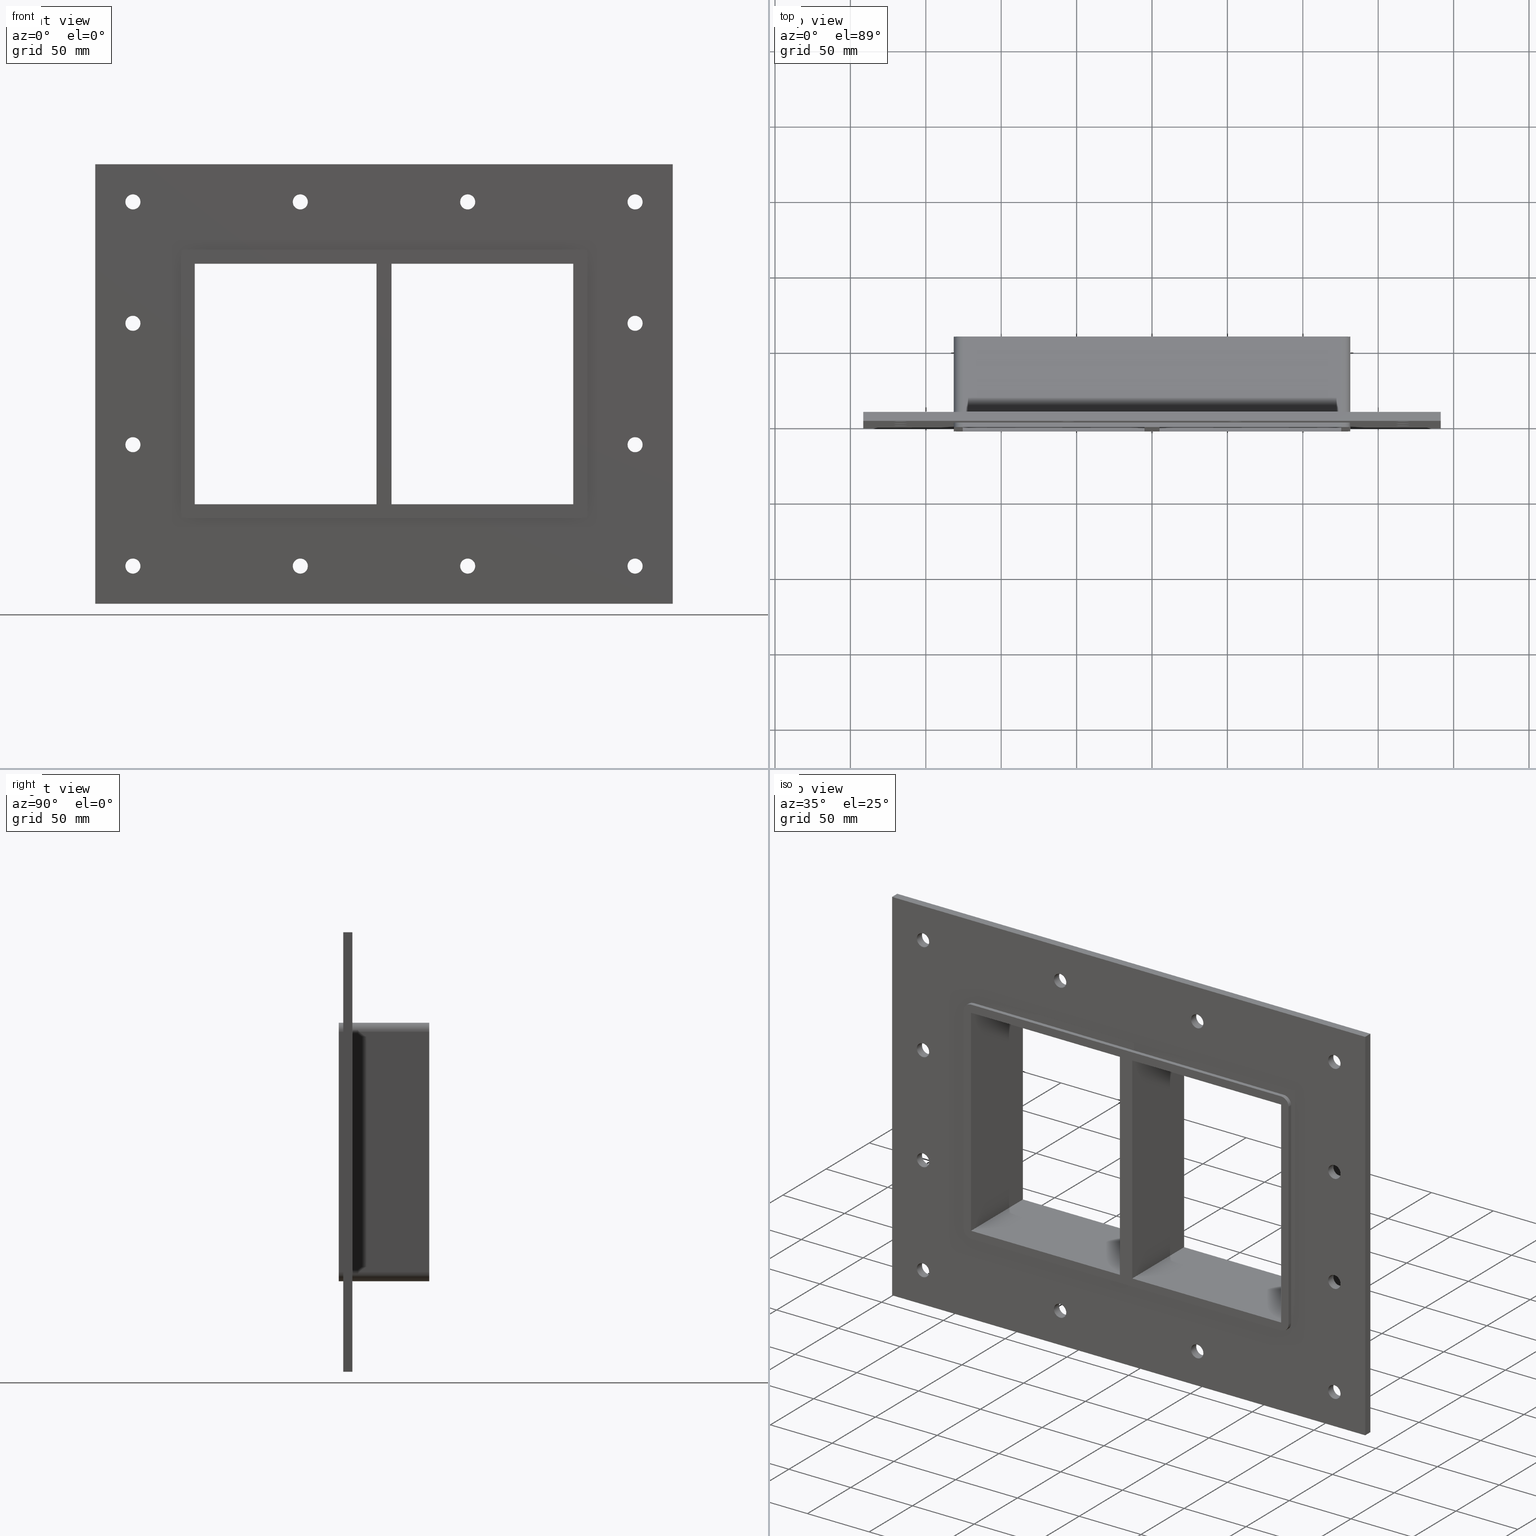
[diagram: canonical four-view strip — front | top / right | iso, engineering-drawing reading convention]
A machine part, canonical four-view strip (front | top / right | iso — engineering-drawing reading convention). The complete STEP part file that produces these views, byte-faithful:
ISO-10303-21;
HEADER;
/****************************************************************
 * Generated by software with PDElib inside                    *
 * PDElib Version v51a, created Wed 11/30/2011                  *
 * ITI Transcendata (http://www.transcendata.com/)              *
 ****************************************************************/
FILE_DESCRIPTION((''),'2;1');
FILE_NAME('N:\\Projects\\Ongoing_Projects\\12403 Transit Designer\\Product-data\\Product Data\\Transit designer Cad Generator\\CreatedFiles\\STEP\\G B EX4X2.stp','2014-12-01T13:17:28',(''),(''),'Autodesk Inventor 2013','Autodesk Inventor 2013','');
FILE_SCHEMA(('AUTOMOTIVE_DESIGN { 1 0 10303 214 1 1 1 1 }'));
ENDSEC;
DATA;
#5=APPLICATION_CONTEXT('automotive design');
#6=APPLICATION_PROTOCOL_DEFINITION('International Standard','automotive_design',2001,#5);
#7=PRODUCT_CONTEXT('',#5,'mechanical');
#8=PRODUCT('G B Ex','G B Ex',$,(#7));
#9=PRODUCT_RELATED_PRODUCT_CATEGORY('part',$,(#8));
#10=PRODUCT_DEFINITION_FORMATION('',$,#8);
#11=PRODUCT_DEFINITION_CONTEXT('part definition',#5,'design');
#12=PRODUCT_DEFINITION('',$,#10,#11);
#18=(NAMED_UNIT(*)PLANE_ANGLE_UNIT()SI_UNIT($,.RADIAN.));
#19=DIMENSIONAL_EXPONENTS(0.0,0.0,0.0,0.0,0.0,0.0,0.0);
#20=PLANE_ANGLE_MEASURE_WITH_UNIT(PLANE_ANGLE_MEASURE(0.0174532925),#18);
#24=(CONVERSION_BASED_UNIT('DEGREE',#20)NAMED_UNIT(#19)PLANE_ANGLE_UNIT());
#28=(NAMED_UNIT(*)SI_UNIT($,.STERADIAN.)SOLID_ANGLE_UNIT());
#32=(LENGTH_UNIT()NAMED_UNIT(*)SI_UNIT(.MILLI.,.METRE.));
#34=UNCERTAINTY_MEASURE_WITH_UNIT(LENGTH_MEASURE(0.01),#32,'DISTANCE_ACCURACY_VALUE','');
#36=(GEOMETRIC_REPRESENTATION_CONTEXT(3)GLOBAL_UNCERTAINTY_ASSIGNED_CONTEXT((#34))GLOBAL_UNIT_ASSIGNED_CONTEXT((#24,#28,#32))REPRESENTATION_CONTEXT('None','None'));
#37=AXIS2_PLACEMENT_3D('',#38,#39,#40);
#38=CARTESIAN_POINT('',(0.0,0.0,0.0));
#39=DIRECTION('',(0.0,0.0,1.0));
#40=DIRECTION('',(1.0,0.0,0.0));
#41=SHAPE_REPRESENTATION('',(#37),#36);
#42=PRODUCT_DEFINITION_SHAPE('','',#12);
#43=SHAPE_DEFINITION_REPRESENTATION(#42,#41);
#49=(NAMED_UNIT(*)PLANE_ANGLE_UNIT()SI_UNIT($,.RADIAN.));
#50=DIMENSIONAL_EXPONENTS(0.0,0.0,0.0,0.0,0.0,0.0,0.0);
#51=PLANE_ANGLE_MEASURE_WITH_UNIT(PLANE_ANGLE_MEASURE(0.0174532925),#49);
#55=(CONVERSION_BASED_UNIT('DEGREE',#51)NAMED_UNIT(#50)PLANE_ANGLE_UNIT());
#59=(NAMED_UNIT(*)SI_UNIT($,.STERADIAN.)SOLID_ANGLE_UNIT());
#63=(LENGTH_UNIT()NAMED_UNIT(*)SI_UNIT(.MILLI.,.METRE.));
#65=UNCERTAINTY_MEASURE_WITH_UNIT(LENGTH_MEASURE(0.000001),#63,'DISTANCE_ACCURACY_VALUE','');
#67=(GEOMETRIC_REPRESENTATION_CONTEXT(3)GLOBAL_UNCERTAINTY_ASSIGNED_CONTEXT((#65))GLOBAL_UNIT_ASSIGNED_CONTEXT((#55,#59,#63))REPRESENTATION_CONTEXT('','3D'));
#68=CARTESIAN_POINT('',(-166.50000000000009,485.03736969433595,-120.75));
#69=DIRECTION('',(0.0,-1.0,0.0));
#70=DIRECTION('',(1.0,0.0,0.0));
#71=AXIS2_PLACEMENT_3D('',#68,#69,#70);
#72=CYLINDRICAL_SURFACE('',#71,5.0);
#73=CARTESIAN_POINT('',(-171.50000000000009,6.000000000000014,-120.75));
#74=VERTEX_POINT('',#73);
#75=CARTESIAN_POINT('',(-166.50000000000009,6.000000000000014,-120.75));
#76=DIRECTION('',(0.0,-1.0,0.0));
#77=DIRECTION('',(1.0,0.0,0.0));
#78=AXIS2_PLACEMENT_3D('',#75,#76,#77);
#79=CIRCLE('',#78,5.0);
#80=EDGE_CURVE('',#74,#74,#79,.T.);
#81=ORIENTED_EDGE('',*,*,#80,.F.);
#82=EDGE_LOOP('',(#81));
#83=FACE_OUTER_BOUND('',#82,.T.);
#84=CARTESIAN_POINT('',(-161.50000000000009,0.0,-120.75));
#85=VERTEX_POINT('',#84);
#86=CARTESIAN_POINT('',(-166.50000000000009,0.0,-120.75));
#87=DIRECTION('',(0.0,1.0,0.0));
#88=DIRECTION('',(1.0,0.0,0.0));
#89=AXIS2_PLACEMENT_3D('',#86,#87,#88);
#90=CIRCLE('',#89,5.0);
#91=EDGE_CURVE('',#85,#85,#90,.T.);
#92=ORIENTED_EDGE('',*,*,#91,.F.);
#93=EDGE_LOOP('',(#92));
#94=FACE_BOUND('',#93,.T.);
#95=ADVANCED_FACE('',(#83,#94),#72,.F.);
#96=CARTESIAN_POINT('',(166.49999999999994,485.03736969433595,-40.249999999999986));
#97=DIRECTION('',(0.0,-1.0,0.0));
#98=DIRECTION('',(1.0,0.0,0.0));
#99=AXIS2_PLACEMENT_3D('',#96,#97,#98);
#100=CYLINDRICAL_SURFACE('',#99,5.0);
#101=CARTESIAN_POINT('',(161.49999999999994,6.000000000000014,-40.249999999999986));
#102=VERTEX_POINT('',#101);
#103=CARTESIAN_POINT('',(166.49999999999994,6.000000000000014,-40.249999999999986));
#104=DIRECTION('',(0.0,-1.0,0.0));
#105=DIRECTION('',(1.0,0.0,0.0));
#106=AXIS2_PLACEMENT_3D('',#103,#104,#105);
#107=CIRCLE('',#106,5.0);
#108=EDGE_CURVE('',#102,#102,#107,.T.);
#109=ORIENTED_EDGE('',*,*,#108,.F.);
#110=EDGE_LOOP('',(#109));
#111=FACE_OUTER_BOUND('',#110,.T.);
#112=CARTESIAN_POINT('',(171.49999999999994,0.0,-40.249999999999986));
#113=VERTEX_POINT('',#112);
#114=CARTESIAN_POINT('',(166.49999999999994,0.0,-40.249999999999986));
#115=DIRECTION('',(0.0,1.0,0.0));
#116=DIRECTION('',(1.0,0.0,0.0));
#117=AXIS2_PLACEMENT_3D('',#114,#115,#116);
#118=CIRCLE('',#117,5.0);
#119=EDGE_CURVE('',#113,#113,#118,.T.);
#120=ORIENTED_EDGE('',*,*,#119,.F.);
#121=EDGE_LOOP('',(#120));
#122=FACE_BOUND('',#121,.T.);
#123=ADVANCED_FACE('',(#111,#122),#100,.F.);
#124=CARTESIAN_POINT('',(-166.50000000000009,485.03736969433595,-40.249999999999986));
#125=DIRECTION('',(0.0,-1.0,0.0));
#126=DIRECTION('',(1.0,0.0,0.0));
#127=AXIS2_PLACEMENT_3D('',#124,#125,#126);
#128=CYLINDRICAL_SURFACE('',#127,5.0);
#129=CARTESIAN_POINT('',(-171.50000000000009,6.000000000000014,-40.249999999999986));
#130=VERTEX_POINT('',#129);
#131=CARTESIAN_POINT('',(-166.50000000000009,6.000000000000014,-40.249999999999986));
#132=DIRECTION('',(0.0,-1.0,0.0));
#133=DIRECTION('',(1.0,0.0,0.0));
#134=AXIS2_PLACEMENT_3D('',#131,#132,#133);
#135=CIRCLE('',#134,5.0);
#136=EDGE_CURVE('',#130,#130,#135,.T.);
#137=ORIENTED_EDGE('',*,*,#136,.F.);
#138=EDGE_LOOP('',(#137));
#139=FACE_OUTER_BOUND('',#138,.T.);
#140=CARTESIAN_POINT('',(-161.50000000000009,0.0,-40.249999999999986));
#141=VERTEX_POINT('',#140);
#142=CARTESIAN_POINT('',(-166.50000000000009,0.0,-40.249999999999986));
#143=DIRECTION('',(0.0,1.0,0.0));
#144=DIRECTION('',(1.0,0.0,0.0));
#145=AXIS2_PLACEMENT_3D('',#142,#143,#144);
#146=CIRCLE('',#145,5.0);
#147=EDGE_CURVE('',#141,#141,#146,.T.);
#148=ORIENTED_EDGE('',*,*,#147,.F.);
#149=EDGE_LOOP('',(#148));
#150=FACE_BOUND('',#149,.T.);
#151=ADVANCED_FACE('',(#139,#150),#128,.F.);
#152=CARTESIAN_POINT('',(166.49999999999994,485.03736969433595,40.250000000000021));
#153=DIRECTION('',(0.0,-1.0,0.0));
#154=DIRECTION('',(1.0,0.0,0.0));
#155=AXIS2_PLACEMENT_3D('',#152,#153,#154);
#156=CYLINDRICAL_SURFACE('',#155,5.0);
#157=CARTESIAN_POINT('',(161.49999999999994,6.000000000000014,40.250000000000021));
#158=VERTEX_POINT('',#157);
#159=CARTESIAN_POINT('',(166.49999999999994,6.000000000000014,40.250000000000021));
#160=DIRECTION('',(0.0,-1.0,0.0));
#161=DIRECTION('',(1.0,0.0,0.0));
#162=AXIS2_PLACEMENT_3D('',#159,#160,#161);
#163=CIRCLE('',#162,5.0);
#164=EDGE_CURVE('',#158,#158,#163,.T.);
#165=ORIENTED_EDGE('',*,*,#164,.F.);
#166=EDGE_LOOP('',(#165));
#167=FACE_OUTER_BOUND('',#166,.T.);
#168=CARTESIAN_POINT('',(171.49999999999994,0.0,40.250000000000021));
#169=VERTEX_POINT('',#168);
#170=CARTESIAN_POINT('',(166.49999999999994,0.0,40.250000000000021));
#171=DIRECTION('',(0.0,1.0,0.0));
#172=DIRECTION('',(1.0,0.0,0.0));
#173=AXIS2_PLACEMENT_3D('',#170,#171,#172);
#174=CIRCLE('',#173,5.0);
#175=EDGE_CURVE('',#169,#169,#174,.T.);
#176=ORIENTED_EDGE('',*,*,#175,.F.);
#177=EDGE_LOOP('',(#176));
#178=FACE_BOUND('',#177,.T.);
#179=ADVANCED_FACE('',(#167,#178),#156,.F.);
#180=CARTESIAN_POINT('',(-166.50000000000009,485.03736969433595,40.250000000000021));
#181=DIRECTION('',(0.0,-1.0,0.0));
#182=DIRECTION('',(1.0,0.0,0.0));
#183=AXIS2_PLACEMENT_3D('',#180,#181,#182);
#184=CYLINDRICAL_SURFACE('',#183,5.0);
#185=CARTESIAN_POINT('',(-171.50000000000009,6.000000000000014,40.250000000000021));
#186=VERTEX_POINT('',#185);
#187=CARTESIAN_POINT('',(-166.50000000000009,6.000000000000014,40.250000000000021));
#188=DIRECTION('',(0.0,-1.0,0.0));
#189=DIRECTION('',(1.0,0.0,0.0));
#190=AXIS2_PLACEMENT_3D('',#187,#188,#189);
#191=CIRCLE('',#190,5.0);
#192=EDGE_CURVE('',#186,#186,#191,.T.);
#193=ORIENTED_EDGE('',*,*,#192,.F.);
#194=EDGE_LOOP('',(#193));
#195=FACE_OUTER_BOUND('',#194,.T.);
#196=CARTESIAN_POINT('',(-161.50000000000009,0.0,40.250000000000021));
#197=VERTEX_POINT('',#196);
#198=CARTESIAN_POINT('',(-166.50000000000009,0.0,40.250000000000021));
#199=DIRECTION('',(0.0,1.0,0.0));
#200=DIRECTION('',(1.0,0.0,0.0));
#201=AXIS2_PLACEMENT_3D('',#198,#199,#200);
#202=CIRCLE('',#201,5.0);
#203=EDGE_CURVE('',#197,#197,#202,.T.);
#204=ORIENTED_EDGE('',*,*,#203,.F.);
#205=EDGE_LOOP('',(#204));
#206=FACE_BOUND('',#205,.T.);
#207=ADVANCED_FACE('',(#195,#206),#184,.F.);
#208=CARTESIAN_POINT('',(-55.500000000000078,485.03736969433595,120.75000000000003));
#209=DIRECTION('',(0.0,-1.0,0.0));
#210=DIRECTION('',(1.0,0.0,0.0));
#211=AXIS2_PLACEMENT_3D('',#208,#209,#210);
#212=CYLINDRICAL_SURFACE('',#211,5.0);
#213=CARTESIAN_POINT('',(-60.500000000000078,6.000000000000014,120.75000000000003));
#214=VERTEX_POINT('',#213);
#215=CARTESIAN_POINT('',(-55.500000000000078,6.000000000000014,120.75000000000003));
#216=DIRECTION('',(0.0,-1.0,0.0));
#217=DIRECTION('',(1.0,0.0,0.0));
#218=AXIS2_PLACEMENT_3D('',#215,#216,#217);
#219=CIRCLE('',#218,5.0);
#220=EDGE_CURVE('',#214,#214,#219,.T.);
#221=ORIENTED_EDGE('',*,*,#220,.F.);
#222=EDGE_LOOP('',(#221));
#223=FACE_OUTER_BOUND('',#222,.T.);
#224=CARTESIAN_POINT('',(-50.500000000000078,0.0,120.75000000000003));
#225=VERTEX_POINT('',#224);
#226=CARTESIAN_POINT('',(-55.500000000000078,0.0,120.75000000000003));
#227=DIRECTION('',(0.0,1.0,0.0));
#228=DIRECTION('',(1.0,0.0,0.0));
#229=AXIS2_PLACEMENT_3D('',#226,#227,#228);
#230=CIRCLE('',#229,5.0);
#231=EDGE_CURVE('',#225,#225,#230,.T.);
#232=ORIENTED_EDGE('',*,*,#231,.F.);
#233=EDGE_LOOP('',(#232));
#234=FACE_BOUND('',#233,.T.);
#235=ADVANCED_FACE('',(#223,#234),#212,.F.);
#236=CARTESIAN_POINT('',(-55.500000000000078,485.03736969433595,-120.75));
#237=DIRECTION('',(0.0,-1.0,0.0));
#238=DIRECTION('',(1.0,0.0,0.0));
#239=AXIS2_PLACEMENT_3D('',#236,#237,#238);
#240=CYLINDRICAL_SURFACE('',#239,5.0);
#241=CARTESIAN_POINT('',(-60.500000000000078,6.000000000000014,-120.75));
#242=VERTEX_POINT('',#241);
#243=CARTESIAN_POINT('',(-55.500000000000078,6.000000000000014,-120.75));
#244=DIRECTION('',(0.0,-1.0,0.0));
#245=DIRECTION('',(1.0,0.0,0.0));
#246=AXIS2_PLACEMENT_3D('',#243,#244,#245);
#247=CIRCLE('',#246,5.0);
#248=EDGE_CURVE('',#242,#242,#247,.T.);
#249=ORIENTED_EDGE('',*,*,#248,.F.);
#250=EDGE_LOOP('',(#249));
#251=FACE_OUTER_BOUND('',#250,.T.);
#252=CARTESIAN_POINT('',(-50.500000000000078,0.0,-120.75));
#253=VERTEX_POINT('',#252);
#254=CARTESIAN_POINT('',(-55.500000000000078,0.0,-120.75));
#255=DIRECTION('',(0.0,1.0,0.0));
#256=DIRECTION('',(1.0,0.0,0.0));
#257=AXIS2_PLACEMENT_3D('',#254,#255,#256);
#258=CIRCLE('',#257,5.0);
#259=EDGE_CURVE('',#253,#253,#258,.T.);
#260=ORIENTED_EDGE('',*,*,#259,.F.);
#261=EDGE_LOOP('',(#260));
#262=FACE_BOUND('',#261,.T.);
#263=ADVANCED_FACE('',(#251,#262),#240,.F.);
#264=CARTESIAN_POINT('',(55.499999999999936,485.03736969433595,120.75000000000003));
#265=DIRECTION('',(0.0,-1.0,0.0));
#266=DIRECTION('',(1.0,0.0,0.0));
#267=AXIS2_PLACEMENT_3D('',#264,#265,#266);
#268=CYLINDRICAL_SURFACE('',#267,5.0);
#269=CARTESIAN_POINT('',(50.499999999999936,6.000000000000014,120.75000000000003));
#270=VERTEX_POINT('',#269);
#271=CARTESIAN_POINT('',(55.499999999999936,6.000000000000014,120.75000000000003));
#272=DIRECTION('',(0.0,-1.0,0.0));
#273=DIRECTION('',(1.0,0.0,0.0));
#274=AXIS2_PLACEMENT_3D('',#271,#272,#273);
#275=CIRCLE('',#274,5.0);
#276=EDGE_CURVE('',#270,#270,#275,.T.);
#277=ORIENTED_EDGE('',*,*,#276,.F.);
#278=EDGE_LOOP('',(#277));
#279=FACE_OUTER_BOUND('',#278,.T.);
#280=CARTESIAN_POINT('',(60.499999999999936,0.0,120.75000000000003));
#281=VERTEX_POINT('',#280);
#282=CARTESIAN_POINT('',(55.499999999999936,0.0,120.75000000000003));
#283=DIRECTION('',(0.0,1.0,0.0));
#284=DIRECTION('',(1.0,0.0,0.0));
#285=AXIS2_PLACEMENT_3D('',#282,#283,#284);
#286=CIRCLE('',#285,5.0);
#287=EDGE_CURVE('',#281,#281,#286,.T.);
#288=ORIENTED_EDGE('',*,*,#287,.F.);
#289=EDGE_LOOP('',(#288));
#290=FACE_BOUND('',#289,.T.);
#291=ADVANCED_FACE('',(#279,#290),#268,.F.);
#292=CARTESIAN_POINT('',(55.499999999999936,485.03736969433595,-120.75));
#293=DIRECTION('',(0.0,-1.0,0.0));
#294=DIRECTION('',(1.0,0.0,0.0));
#295=AXIS2_PLACEMENT_3D('',#292,#293,#294);
#296=CYLINDRICAL_SURFACE('',#295,5.0);
#297=CARTESIAN_POINT('',(50.499999999999936,6.000000000000014,-120.75));
#298=VERTEX_POINT('',#297);
#299=CARTESIAN_POINT('',(55.499999999999936,6.000000000000014,-120.75));
#300=DIRECTION('',(0.0,-1.0,0.0));
#301=DIRECTION('',(1.0,0.0,0.0));
#302=AXIS2_PLACEMENT_3D('',#299,#300,#301);
#303=CIRCLE('',#302,5.0);
#304=EDGE_CURVE('',#298,#298,#303,.T.);
#305=ORIENTED_EDGE('',*,*,#304,.F.);
#306=EDGE_LOOP('',(#305));
#307=FACE_OUTER_BOUND('',#306,.T.);
#308=CARTESIAN_POINT('',(60.499999999999936,0.0,-120.75));
#309=VERTEX_POINT('',#308);
#310=CARTESIAN_POINT('',(55.499999999999936,0.0,-120.75));
#311=DIRECTION('',(0.0,1.0,0.0));
#312=DIRECTION('',(1.0,0.0,0.0));
#313=AXIS2_PLACEMENT_3D('',#310,#311,#312);
#314=CIRCLE('',#313,5.0);
#315=EDGE_CURVE('',#309,#309,#314,.T.);
#316=ORIENTED_EDGE('',*,*,#315,.F.);
#317=EDGE_LOOP('',(#316));
#318=FACE_BOUND('',#317,.T.);
#319=ADVANCED_FACE('',(#307,#318),#296,.F.);
#320=CARTESIAN_POINT('',(166.49999999999994,485.03736969433595,-120.75));
#321=DIRECTION('',(0.0,-1.0,0.0));
#322=DIRECTION('',(1.0,0.0,0.0));
#323=AXIS2_PLACEMENT_3D('',#320,#321,#322);
#324=CYLINDRICAL_SURFACE('',#323,5.0);
#325=CARTESIAN_POINT('',(161.49999999999994,6.000000000000014,-120.75));
#326=VERTEX_POINT('',#325);
#327=CARTESIAN_POINT('',(166.49999999999994,6.000000000000014,-120.75));
#328=DIRECTION('',(0.0,-1.0,0.0));
#329=DIRECTION('',(1.0,0.0,0.0));
#330=AXIS2_PLACEMENT_3D('',#327,#328,#329);
#331=CIRCLE('',#330,5.0);
#332=EDGE_CURVE('',#326,#326,#331,.T.);
#333=ORIENTED_EDGE('',*,*,#332,.F.);
#334=EDGE_LOOP('',(#333));
#335=FACE_OUTER_BOUND('',#334,.T.);
#336=CARTESIAN_POINT('',(171.49999999999994,0.0,-120.75));
#337=VERTEX_POINT('',#336);
#338=CARTESIAN_POINT('',(166.49999999999994,0.0,-120.75));
#339=DIRECTION('',(0.0,1.0,0.0));
#340=DIRECTION('',(1.0,0.0,0.0));
#341=AXIS2_PLACEMENT_3D('',#338,#339,#340);
#342=CIRCLE('',#341,5.0);
#343=EDGE_CURVE('',#337,#337,#342,.T.);
#344=ORIENTED_EDGE('',*,*,#343,.F.);
#345=EDGE_LOOP('',(#344));
#346=FACE_BOUND('',#345,.T.);
#347=ADVANCED_FACE('',(#335,#346),#324,.F.);
#348=CARTESIAN_POINT('',(-166.50000000000009,485.03736969433595,120.75000000000003));
#349=DIRECTION('',(0.0,-1.0,0.0));
#350=DIRECTION('',(1.0,0.0,0.0));
#351=AXIS2_PLACEMENT_3D('',#348,#349,#350);
#352=CYLINDRICAL_SURFACE('',#351,5.0);
#353=CARTESIAN_POINT('',(-171.50000000000009,6.000000000000014,120.75000000000003));
#354=VERTEX_POINT('',#353);
#355=CARTESIAN_POINT('',(-166.50000000000009,6.000000000000014,120.75000000000003));
#356=DIRECTION('',(0.0,-1.0,0.0));
#357=DIRECTION('',(1.0,0.0,0.0));
#358=AXIS2_PLACEMENT_3D('',#355,#356,#357);
#359=CIRCLE('',#358,5.0);
#360=EDGE_CURVE('',#354,#354,#359,.T.);
#361=ORIENTED_EDGE('',*,*,#360,.F.);
#362=EDGE_LOOP('',(#361));
#363=FACE_OUTER_BOUND('',#362,.T.);
#364=CARTESIAN_POINT('',(-161.50000000000009,0.0,120.75000000000003));
#365=VERTEX_POINT('',#364);
#366=CARTESIAN_POINT('',(-166.50000000000009,0.0,120.75000000000003));
#367=DIRECTION('',(0.0,1.0,0.0));
#368=DIRECTION('',(1.0,0.0,0.0));
#369=AXIS2_PLACEMENT_3D('',#366,#367,#368);
#370=CIRCLE('',#369,5.0);
#371=EDGE_CURVE('',#365,#365,#370,.T.);
#372=ORIENTED_EDGE('',*,*,#371,.F.);
#373=EDGE_LOOP('',(#372));
#374=FACE_BOUND('',#373,.T.);
#375=ADVANCED_FACE('',(#363,#374),#352,.F.);
#376=CARTESIAN_POINT('',(166.49999999999994,485.03736969433595,120.75000000000003));
#377=DIRECTION('',(0.0,-1.0,0.0));
#378=DIRECTION('',(1.0,0.0,0.0));
#379=AXIS2_PLACEMENT_3D('',#376,#377,#378);
#380=CYLINDRICAL_SURFACE('',#379,5.0);
#381=CARTESIAN_POINT('',(161.49999999999994,6.000000000000014,120.75000000000003));
#382=VERTEX_POINT('',#381);
#383=CARTESIAN_POINT('',(166.49999999999994,6.000000000000014,120.75000000000003));
#384=DIRECTION('',(0.0,-1.0,0.0));
#385=DIRECTION('',(1.0,0.0,0.0));
#386=AXIS2_PLACEMENT_3D('',#383,#384,#385);
#387=CIRCLE('',#386,5.0);
#388=EDGE_CURVE('',#382,#382,#387,.T.);
#389=ORIENTED_EDGE('',*,*,#388,.F.);
#390=EDGE_LOOP('',(#389));
#391=FACE_OUTER_BOUND('',#390,.T.);
#392=CARTESIAN_POINT('',(171.49999999999994,0.0,120.75000000000003));
#393=VERTEX_POINT('',#392);
#394=CARTESIAN_POINT('',(166.49999999999994,0.0,120.75000000000003));
#395=DIRECTION('',(0.0,1.0,0.0));
#396=DIRECTION('',(1.0,0.0,0.0));
#397=AXIS2_PLACEMENT_3D('',#394,#395,#396);
#398=CIRCLE('',#397,5.0);
#399=EDGE_CURVE('',#393,#393,#398,.T.);
#400=ORIENTED_EDGE('',*,*,#399,.F.);
#401=EDGE_LOOP('',(#400));
#402=FACE_BOUND('',#401,.T.);
#403=ADVANCED_FACE('',(#391,#402),#380,.F.);
#404=CARTESIAN_POINT('',(-5.000000000001279,-3.0,-79.750000000000014));
#405=DIRECTION('',(-1.0,0.0,0.0));
#406=DIRECTION('',(0.0,0.0,1.0));
#407=AXIS2_PLACEMENT_3D('',#404,#405,#406);
#408=PLANE('',#407);
#409=CARTESIAN_POINT('',(-5.000000000001279,-3.0,-79.750000000000014));
#410=VERTEX_POINT('',#409);
#411=CARTESIAN_POINT('',(-5.000000000001315,-3.0,79.750000000000014));
#412=VERTEX_POINT('',#411);
#413=CARTESIAN_POINT('',(-5.000000000001279,-3.0,-79.750000000000014));
#414=DIRECTION('',(0.0,0.0,1.0));
#415=VECTOR('',#414,159.50000000000003);
#416=LINE('',#413,#415);
#417=EDGE_CURVE('',#410,#412,#416,.T.);
#418=ORIENTED_EDGE('',*,*,#417,.T.);
#419=CARTESIAN_POINT('',(-5.000000000001315,57.0,79.750000000000014));
#420=VERTEX_POINT('',#419);
#421=CARTESIAN_POINT('',(-5.000000000001315,57.000000000000007,79.750000000000014));
#422=DIRECTION('',(0.0,-1.0,0.0));
#423=VECTOR('',#422,60.000000000000007);
#424=LINE('',#421,#423);
#425=EDGE_CURVE('',#420,#412,#424,.T.);
#426=ORIENTED_EDGE('',*,*,#425,.F.);
#427=CARTESIAN_POINT('',(-5.000000000001279,57.0,-79.750000000000014));
#428=VERTEX_POINT('',#427);
#429=CARTESIAN_POINT('',(-5.000000000001279,57.0,-79.750000000000014));
#430=DIRECTION('',(0.0,0.0,1.0));
#431=VECTOR('',#430,159.50000000000003);
#432=LINE('',#429,#431);
#433=EDGE_CURVE('',#428,#420,#432,.T.);
#434=ORIENTED_EDGE('',*,*,#433,.F.);
#435=CARTESIAN_POINT('',(-5.000000000001279,-3.0,-79.750000000000014));
#436=DIRECTION('',(0.0,1.0,0.0));
#437=VECTOR('',#436,60.000000000000007);
#438=LINE('',#435,#437);
#439=EDGE_CURVE('',#410,#428,#438,.T.);
#440=ORIENTED_EDGE('',*,*,#439,.F.);
#441=EDGE_LOOP('',(#418,#426,#434,#440));
#442=FACE_OUTER_BOUND('',#441,.T.);
#443=ADVANCED_FACE('',(#442),#408,.T.);
#444=CARTESIAN_POINT('',(5.0,-3.0,79.750000000000014));
#445=DIRECTION('',(1.0,0.0,0.0));
#446=DIRECTION('',(0.0,0.0,-1.0));
#447=AXIS2_PLACEMENT_3D('',#444,#445,#446);
#448=PLANE('',#447);
#449=CARTESIAN_POINT('',(5.0,-3.0,79.750000000000014));
#450=VERTEX_POINT('',#449);
#451=CARTESIAN_POINT('',(5.0,-3.0,-79.749999999981782));
#452=VERTEX_POINT('',#451);
#453=CARTESIAN_POINT('',(5.0,-3.0,79.750000000000014));
#454=DIRECTION('',(0.0,0.0,-1.0));
#455=VECTOR('',#454,159.49999999998181);
#456=LINE('',#453,#455);
#457=EDGE_CURVE('',#450,#452,#456,.T.);
#458=ORIENTED_EDGE('',*,*,#457,.T.);
#459=CARTESIAN_POINT('',(5.0,57.0,-79.749999999981782));
#460=VERTEX_POINT('',#459);
#461=CARTESIAN_POINT('',(5.0,57.000000000000007,-79.750000000000014));
#462=DIRECTION('',(0.0,-1.0,0.0));
#463=VECTOR('',#462,60.000000000000007);
#464=LINE('',#461,#463);
#465=EDGE_CURVE('',#460,#452,#464,.T.);
#466=ORIENTED_EDGE('',*,*,#465,.F.);
#467=CARTESIAN_POINT('',(5.0,57.0,79.750000000000014));
#468=VERTEX_POINT('',#467);
#469=CARTESIAN_POINT('',(5.0,57.0,79.750000000000014));
#470=DIRECTION('',(0.0,0.0,-1.0));
#471=VECTOR('',#470,159.49999999998181);
#472=LINE('',#469,#471);
#473=EDGE_CURVE('',#468,#460,#472,.T.);
#474=ORIENTED_EDGE('',*,*,#473,.F.);
#475=CARTESIAN_POINT('',(5.0,-3.0,79.750000000000014));
#476=DIRECTION('',(0.0,1.0,0.0));
#477=VECTOR('',#476,60.000000000000007);
#478=LINE('',#475,#477);
#479=EDGE_CURVE('',#450,#468,#478,.T.);
#480=ORIENTED_EDGE('',*,*,#479,.F.);
#481=EDGE_LOOP('',(#458,#466,#474,#480));
#482=FACE_OUTER_BOUND('',#481,.T.);
#483=ADVANCED_FACE('',(#482),#448,.T.);
#484=CARTESIAN_POINT('',(125.49999999999997,0.0,-79.750000000000014));
#485=DIRECTION('',(0.0,0.0,-1.0));
#486=DIRECTION('',(-1.0,0.0,0.0));
#487=AXIS2_PLACEMENT_3D('',#484,#485,#486);
#488=PLANE('',#487);
#489=ORIENTED_EDGE('',*,*,#439,.T.);
#490=CARTESIAN_POINT('',(-125.49999999999997,57.0,-79.750000000000014));
#491=VERTEX_POINT('',#490);
#492=CARTESIAN_POINT('',(-125.49999999999994,57.0,-79.750000000000014));
#493=DIRECTION('',(1.0,0.0,0.0));
#494=VECTOR('',#493,120.49999999999866);
#495=LINE('',#492,#494);
#496=EDGE_CURVE('',#491,#428,#495,.T.);
#497=ORIENTED_EDGE('',*,*,#496,.F.);
#498=CARTESIAN_POINT('',(-125.49999999999997,-3.0,-79.750000000000014));
#499=VERTEX_POINT('',#498);
#500=CARTESIAN_POINT('',(-125.49999999999999,-3.0,-79.750000000000014));
#501=DIRECTION('',(0.0,1.0,0.0));
#502=VECTOR('',#501,60.0);
#503=LINE('',#500,#502);
#504=EDGE_CURVE('',#499,#491,#503,.T.);
#505=ORIENTED_EDGE('',*,*,#504,.F.);
#506=CARTESIAN_POINT('',(-5.000000000001286,-3.0,-79.750000000000014));
#507=DIRECTION('',(-1.0,0.0,0.0));
#508=VECTOR('',#507,120.49999999999866);
#509=LINE('',#506,#508);
#510=EDGE_CURVE('',#410,#499,#509,.T.);
#511=ORIENTED_EDGE('',*,*,#510,.F.);
#512=EDGE_LOOP('',(#489,#497,#505,#511));
#513=FACE_OUTER_BOUND('',#512,.T.);
#514=ADVANCED_FACE('',(#513),#488,.F.);
#515=CARTESIAN_POINT('',(125.49999999999997,0.0,-79.750000000000014));
#516=DIRECTION('',(0.0,0.0,-1.0));
#517=DIRECTION('',(-1.0,0.0,0.0));
#518=AXIS2_PLACEMENT_3D('',#515,#516,#517);
#519=PLANE('',#518);
#520=ORIENTED_EDGE('',*,*,#465,.T.);
#521=CARTESIAN_POINT('',(125.49999999999997,-3.0,-79.750000000000014));
#522=VERTEX_POINT('',#521);
#523=CARTESIAN_POINT('',(125.49999999999997,-3.0,-79.750000000000014));
#524=DIRECTION('',(-1.0,0.0,0.0));
#525=VECTOR('',#524,120.49999999999997);
#526=LINE('',#523,#525);
#527=EDGE_CURVE('',#522,#452,#526,.T.);
#528=ORIENTED_EDGE('',*,*,#527,.F.);
#529=CARTESIAN_POINT('',(125.49999999999997,57.0,-79.750000000000014));
#530=VERTEX_POINT('',#529);
#531=CARTESIAN_POINT('',(125.49999999999997,56.999999999999993,-79.750000000000014));
#532=DIRECTION('',(0.0,-1.0,0.0));
#533=VECTOR('',#532,59.999999999999993);
#534=LINE('',#531,#533);
#535=EDGE_CURVE('',#530,#522,#534,.T.);
#536=ORIENTED_EDGE('',*,*,#535,.F.);
#537=CARTESIAN_POINT('',(5.0,57.0,-79.750000000000014));
#538=DIRECTION('',(1.0,0.0,0.0));
#539=VECTOR('',#538,120.49999999999997);
#540=LINE('',#537,#539);
#541=EDGE_CURVE('',#460,#530,#540,.T.);
#542=ORIENTED_EDGE('',*,*,#541,.F.);
#543=EDGE_LOOP('',(#520,#528,#536,#542));
#544=FACE_OUTER_BOUND('',#543,.T.);
#545=ADVANCED_FACE('',(#544),#519,.F.);
#546=CARTESIAN_POINT('',(-125.49999999999999,0.0,79.750000000000014));
#547=DIRECTION('',(0.0,0.0,1.0));
#548=DIRECTION('',(1.0,0.0,0.0));
#549=AXIS2_PLACEMENT_3D('',#546,#547,#548);
#550=PLANE('',#549);
#551=ORIENTED_EDGE('',*,*,#479,.T.);
#552=CARTESIAN_POINT('',(125.49999999999997,57.0,79.750000000000014));
#553=VERTEX_POINT('',#552);
#554=CARTESIAN_POINT('',(125.49999999999996,57.0,79.750000000000014));
#555=DIRECTION('',(-1.0,0.0,0.0));
#556=VECTOR('',#555,120.49999999999996);
#557=LINE('',#554,#556);
#558=EDGE_CURVE('',#553,#468,#557,.T.);
#559=ORIENTED_EDGE('',*,*,#558,.F.);
#560=CARTESIAN_POINT('',(125.49999999999997,-3.0,79.750000000000014));
#561=VERTEX_POINT('',#560);
#562=CARTESIAN_POINT('',(125.49999999999997,-3.0,79.750000000000014));
#563=DIRECTION('',(0.0,1.0,0.0));
#564=VECTOR('',#563,60.0);
#565=LINE('',#562,#564);
#566=EDGE_CURVE('',#561,#553,#565,.T.);
#567=ORIENTED_EDGE('',*,*,#566,.F.);
#568=CARTESIAN_POINT('',(5.0,-3.0,79.750000000000014));
#569=DIRECTION('',(1.0,0.0,0.0));
#570=VECTOR('',#569,120.49999999999996);
#571=LINE('',#568,#570);
#572=EDGE_CURVE('',#450,#561,#571,.T.);
#573=ORIENTED_EDGE('',*,*,#572,.F.);
#574=EDGE_LOOP('',(#551,#559,#567,#573));
#575=FACE_OUTER_BOUND('',#574,.T.);
#576=ADVANCED_FACE('',(#575),#550,.F.);
#577=CARTESIAN_POINT('',(-125.49999999999999,0.0,79.750000000000014));
#578=DIRECTION('',(0.0,0.0,1.0));
#579=DIRECTION('',(1.0,0.0,0.0));
#580=AXIS2_PLACEMENT_3D('',#577,#578,#579);
#581=PLANE('',#580);
#582=ORIENTED_EDGE('',*,*,#425,.T.);
#583=CARTESIAN_POINT('',(-125.49999999999997,-3.0,79.750000000000014));
#584=VERTEX_POINT('',#583);
#585=CARTESIAN_POINT('',(-125.49999999999997,-3.0,79.750000000000014));
#586=DIRECTION('',(1.0,0.0,0.0));
#587=VECTOR('',#586,120.49999999999866);
#588=LINE('',#585,#587);
#589=EDGE_CURVE('',#584,#412,#588,.T.);
#590=ORIENTED_EDGE('',*,*,#589,.F.);
#591=CARTESIAN_POINT('',(-125.49999999999997,57.0,79.750000000000014));
#592=VERTEX_POINT('',#591);
#593=CARTESIAN_POINT('',(-125.49999999999999,-3.0,79.750000000000014));
#594=DIRECTION('',(0.0,1.0,0.0));
#595=VECTOR('',#594,60.0);
#596=LINE('',#593,#595);
#597=EDGE_CURVE('',#584,#592,#596,.T.);
#598=ORIENTED_EDGE('',*,*,#597,.T.);
#599=CARTESIAN_POINT('',(-5.000000000001315,57.0,79.750000000000014));
#600=DIRECTION('',(-1.0,0.0,0.0));
#601=VECTOR('',#600,120.49999999999866);
#602=LINE('',#599,#601);
#603=EDGE_CURVE('',#420,#592,#602,.T.);
#604=ORIENTED_EDGE('',*,*,#603,.F.);
#605=EDGE_LOOP('',(#582,#590,#598,#604));
#606=FACE_OUTER_BOUND('',#605,.T.);
#607=ADVANCED_FACE('',(#606),#581,.F.);
#608=CARTESIAN_POINT('',(1.896185E-014,6.000000000000001,6.320617E-015));
#609=DIRECTION('',(0.0,1.0,0.0));
#610=DIRECTION('',(0.0,0.0,1.0));
#611=AXIS2_PLACEMENT_3D('',#608,#609,#610);
#612=PLANE('',#611);
#613=CARTESIAN_POINT('',(-191.49999999999994,6.000000000000001,145.75));
#614=VERTEX_POINT('',#613);
#615=CARTESIAN_POINT('',(191.50000000000003,6.000000000000001,145.75));
#616=VERTEX_POINT('',#615);
#617=CARTESIAN_POINT('',(-191.49999999999994,6.000000000000001,145.75));
#618=DIRECTION('',(1.0,0.0,0.0));
#619=VECTOR('',#618,383.0);
#620=LINE('',#617,#619);
#621=EDGE_CURVE('',#614,#616,#620,.T.);
#622=ORIENTED_EDGE('',*,*,#621,.T.);
#623=CARTESIAN_POINT('',(191.50000000000003,6.000000000000001,-145.74999999999997));
#624=VERTEX_POINT('',#623);
#625=CARTESIAN_POINT('',(191.5,6.000000000000001,145.75));
#626=DIRECTION('',(0.0,0.0,-1.0));
#627=VECTOR('',#626,291.5);
#628=LINE('',#625,#627);
#629=EDGE_CURVE('',#616,#624,#628,.T.);
#630=ORIENTED_EDGE('',*,*,#629,.T.);
#631=CARTESIAN_POINT('',(-191.49999999999994,6.000000000000001,-145.74999999999997));
#632=VERTEX_POINT('',#631);
#633=CARTESIAN_POINT('',(191.5,6.000000000000001,-145.75));
#634=DIRECTION('',(-1.0,0.0,0.0));
#635=VECTOR('',#634,383.0);
#636=LINE('',#633,#635);
#637=EDGE_CURVE('',#624,#632,#636,.T.);
#638=ORIENTED_EDGE('',*,*,#637,.T.);
#639=CARTESIAN_POINT('',(-191.49999999999994,6.000000000000001,-145.75));
#640=DIRECTION('',(0.0,0.0,1.0));
#641=VECTOR('',#640,291.5);
#642=LINE('',#639,#641);
#643=EDGE_CURVE('',#632,#614,#642,.T.);
#644=ORIENTED_EDGE('',*,*,#643,.T.);
#645=EDGE_LOOP('',(#622,#630,#638,#644));
#646=FACE_OUTER_BOUND('',#645,.T.);
#647=ORIENTED_EDGE('',*,*,#80,.T.);
#648=EDGE_LOOP('',(#647));
#649=FACE_BOUND('',#648,.T.);
#650=ORIENTED_EDGE('',*,*,#108,.T.);
#651=EDGE_LOOP('',(#650));
#652=FACE_BOUND('',#651,.T.);
#653=ORIENTED_EDGE('',*,*,#136,.T.);
#654=EDGE_LOOP('',(#653));
#655=FACE_BOUND('',#654,.T.);
#656=ORIENTED_EDGE('',*,*,#164,.T.);
#657=EDGE_LOOP('',(#656));
#658=FACE_BOUND('',#657,.T.);
#659=ORIENTED_EDGE('',*,*,#192,.T.);
#660=EDGE_LOOP('',(#659));
#661=FACE_BOUND('',#660,.T.);
#662=ORIENTED_EDGE('',*,*,#220,.T.);
#663=EDGE_LOOP('',(#662));
#664=FACE_BOUND('',#663,.T.);
#665=ORIENTED_EDGE('',*,*,#248,.T.);
#666=EDGE_LOOP('',(#665));
#667=FACE_BOUND('',#666,.T.);
#668=ORIENTED_EDGE('',*,*,#276,.T.);
#669=EDGE_LOOP('',(#668));
#670=FACE_BOUND('',#669,.T.);
#671=ORIENTED_EDGE('',*,*,#304,.T.);
#672=EDGE_LOOP('',(#671));
#673=FACE_BOUND('',#672,.T.);
#674=ORIENTED_EDGE('',*,*,#332,.T.);
#675=EDGE_LOOP('',(#674));
#676=FACE_BOUND('',#675,.T.);
#677=ORIENTED_EDGE('',*,*,#360,.T.);
#678=EDGE_LOOP('',(#677));
#679=FACE_BOUND('',#678,.T.);
#680=ORIENTED_EDGE('',*,*,#388,.T.);
#681=EDGE_LOOP('',(#680));
#682=FACE_BOUND('',#681,.T.);
#683=CARTESIAN_POINT('',(-125.5,6.000000000000001,-85.750000000000028));
#684=VERTEX_POINT('',#683);
#685=CARTESIAN_POINT('',(-131.5,6.000000000000001,-79.750000000000028));
#686=VERTEX_POINT('',#685);
#687=CARTESIAN_POINT('',(-125.5,6.000000000000001,-79.750000000000028));
#688=DIRECTION('',(0.0,1.0,0.0));
#689=DIRECTION('',(-0.707106781186547,0.0,-0.707106781186548));
#690=AXIS2_PLACEMENT_3D('',#687,#688,#689);
#691=CIRCLE('',#690,6.0);
#692=EDGE_CURVE('',#684,#686,#691,.T.);
#693=ORIENTED_EDGE('',*,*,#692,.F.);
#694=CARTESIAN_POINT('',(125.5,6.000000000000001,-85.750000000000028));
#695=VERTEX_POINT('',#694);
#696=CARTESIAN_POINT('',(125.5,6.000000000000001,-85.750000000000028));
#697=DIRECTION('',(-1.0,0.0,0.0));
#698=VECTOR('',#697,251.0);
#699=LINE('',#696,#698);
#700=EDGE_CURVE('',#695,#684,#699,.T.);
#701=ORIENTED_EDGE('',*,*,#700,.F.);
#702=CARTESIAN_POINT('',(131.50000000000003,6.000000000000001,-79.750000000000028));
#703=VERTEX_POINT('',#702);
#704=CARTESIAN_POINT('',(125.5,6.000000000000001,-79.750000000000028));
#705=DIRECTION('',(0.0,1.0,0.0));
#706=DIRECTION('',(0.707106781186549,0.0,-0.707106781186546));
#707=AXIS2_PLACEMENT_3D('',#704,#705,#706);
#708=CIRCLE('',#707,6.000000000000001);
#709=EDGE_CURVE('',#703,#695,#708,.T.);
#710=ORIENTED_EDGE('',*,*,#709,.F.);
#711=CARTESIAN_POINT('',(131.50000000000003,6.000000000000001,79.750000000000028));
#712=VERTEX_POINT('',#711);
#713=CARTESIAN_POINT('',(131.50000000000003,6.000000000000001,79.750000000000028));
#714=DIRECTION('',(0.0,0.0,-1.0));
#715=VECTOR('',#714,159.50000000000006);
#716=LINE('',#713,#715);
#717=EDGE_CURVE('',#712,#703,#716,.T.);
#718=ORIENTED_EDGE('',*,*,#717,.F.);
#719=CARTESIAN_POINT('',(125.50000000000004,6.000000000000001,85.750000000000028));
#720=VERTEX_POINT('',#719);
#721=CARTESIAN_POINT('',(125.50000000000004,6.000000000000001,79.750000000000028));
#722=DIRECTION('',(0.0,1.0,0.0));
#723=DIRECTION('',(0.707106781186548,0.0,0.707106781186548));
#724=AXIS2_PLACEMENT_3D('',#721,#722,#723);
#725=CIRCLE('',#724,6.000000000000002);
#726=EDGE_CURVE('',#720,#712,#725,.T.);
#727=ORIENTED_EDGE('',*,*,#726,.F.);
#728=CARTESIAN_POINT('',(-125.49999999999997,6.000000000000001,85.750000000000028));
#729=VERTEX_POINT('',#728);
#730=CARTESIAN_POINT('',(-125.49999999999997,6.000000000000001,85.750000000000028));
#731=DIRECTION('',(1.0,0.0,0.0));
#732=VECTOR('',#731,251.0);
#733=LINE('',#730,#732);
#734=EDGE_CURVE('',#729,#720,#733,.T.);
#735=ORIENTED_EDGE('',*,*,#734,.F.);
#736=CARTESIAN_POINT('',(-131.5,6.000000000000001,79.750000000000028));
#737=VERTEX_POINT('',#736);
#738=CARTESIAN_POINT('',(-125.49999999999997,6.000000000000001,79.750000000000028));
#739=DIRECTION('',(0.0,1.0,0.0));
#740=DIRECTION('',(-0.707106781186549,0.0,0.707106781186546));
#741=AXIS2_PLACEMENT_3D('',#738,#739,#740);
#742=CIRCLE('',#741,6.000000000000001);
#743=EDGE_CURVE('',#737,#729,#742,.T.);
#744=ORIENTED_EDGE('',*,*,#743,.F.);
#745=CARTESIAN_POINT('',(-131.5,6.000000000000001,-79.750000000000028));
#746=DIRECTION('',(0.0,0.0,1.0));
#747=VECTOR('',#746,159.50000000000006);
#748=LINE('',#745,#747);
#749=EDGE_CURVE('',#686,#737,#748,.T.);
#750=ORIENTED_EDGE('',*,*,#749,.F.);
#751=EDGE_LOOP('',(#693,#701,#710,#718,#727,#735,#744,#750));
#752=FACE_BOUND('',#751,.T.);
#753=ADVANCED_FACE('',(#646,#649,#652,#655,#658,#661,#664,#667,#670,#673,#676,#679,#682,#752),#612,.T.);
#754=CARTESIAN_POINT('',(1.896185E-014,0.0,6.320617E-015));
#755=DIRECTION('',(0.0,1.0,0.0));
#756=DIRECTION('',(0.0,0.0,1.0));
#757=AXIS2_PLACEMENT_3D('',#754,#755,#756);
#758=PLANE('',#757);
#759=CARTESIAN_POINT('',(-191.49999999999994,0.0,145.75));
#760=VERTEX_POINT('',#759);
#761=CARTESIAN_POINT('',(191.5,0.0,145.75));
#762=VERTEX_POINT('',#761);
#763=CARTESIAN_POINT('',(-191.49999999999994,0.0,145.75));
#764=DIRECTION('',(1.0,0.0,0.0));
#765=VECTOR('',#764,383.0);
#766=LINE('',#763,#765);
#767=EDGE_CURVE('',#760,#762,#766,.T.);
#768=ORIENTED_EDGE('',*,*,#767,.F.);
#769=CARTESIAN_POINT('',(-191.49999999999994,0.0,-145.75));
#770=VERTEX_POINT('',#769);
#771=CARTESIAN_POINT('',(-191.49999999999994,0.0,-145.75));
#772=DIRECTION('',(0.0,0.0,1.0));
#773=VECTOR('',#772,291.5);
#774=LINE('',#771,#773);
#775=EDGE_CURVE('',#770,#760,#774,.T.);
#776=ORIENTED_EDGE('',*,*,#775,.F.);
#777=CARTESIAN_POINT('',(191.5,0.0,-145.75));
#778=VERTEX_POINT('',#777);
#779=CARTESIAN_POINT('',(191.5,0.0,-145.75));
#780=DIRECTION('',(-1.0,0.0,0.0));
#781=VECTOR('',#780,383.0);
#782=LINE('',#779,#781);
#783=EDGE_CURVE('',#778,#770,#782,.T.);
#784=ORIENTED_EDGE('',*,*,#783,.F.);
#785=CARTESIAN_POINT('',(191.5,0.0,145.75));
#786=DIRECTION('',(0.0,0.0,-1.0));
#787=VECTOR('',#786,291.5);
#788=LINE('',#785,#787);
#789=EDGE_CURVE('',#762,#778,#788,.T.);
#790=ORIENTED_EDGE('',*,*,#789,.F.);
#791=EDGE_LOOP('',(#768,#776,#784,#790));
#792=FACE_OUTER_BOUND('',#791,.T.);
#793=ORIENTED_EDGE('',*,*,#91,.T.);
#794=EDGE_LOOP('',(#793));
#795=FACE_BOUND('',#794,.T.);
#796=ORIENTED_EDGE('',*,*,#119,.T.);
#797=EDGE_LOOP('',(#796));
#798=FACE_BOUND('',#797,.T.);
#799=ORIENTED_EDGE('',*,*,#147,.T.);
#800=EDGE_LOOP('',(#799));
#801=FACE_BOUND('',#800,.T.);
#802=ORIENTED_EDGE('',*,*,#175,.T.);
#803=EDGE_LOOP('',(#802));
#804=FACE_BOUND('',#803,.T.);
#805=ORIENTED_EDGE('',*,*,#203,.T.);
#806=EDGE_LOOP('',(#805));
#807=FACE_BOUND('',#806,.T.);
#808=ORIENTED_EDGE('',*,*,#231,.T.);
#809=EDGE_LOOP('',(#808));
#810=FACE_BOUND('',#809,.T.);
#811=ORIENTED_EDGE('',*,*,#259,.T.);
#812=EDGE_LOOP('',(#811));
#813=FACE_BOUND('',#812,.T.);
#814=ORIENTED_EDGE('',*,*,#287,.T.);
#815=EDGE_LOOP('',(#814));
#816=FACE_BOUND('',#815,.T.);
#817=ORIENTED_EDGE('',*,*,#315,.T.);
#818=EDGE_LOOP('',(#817));
#819=FACE_BOUND('',#818,.T.);
#820=ORIENTED_EDGE('',*,*,#343,.T.);
#821=EDGE_LOOP('',(#820));
#822=FACE_BOUND('',#821,.T.);
#823=ORIENTED_EDGE('',*,*,#371,.T.);
#824=EDGE_LOOP('',(#823));
#825=FACE_BOUND('',#824,.T.);
#826=ORIENTED_EDGE('',*,*,#399,.T.);
#827=EDGE_LOOP('',(#826));
#828=FACE_BOUND('',#827,.T.);
#829=CARTESIAN_POINT('',(-131.5,0.0,-79.750000000000028));
#830=VERTEX_POINT('',#829);
#831=CARTESIAN_POINT('',(-125.5,0.0,-85.750000000000028));
#832=VERTEX_POINT('',#831);
#833=CARTESIAN_POINT('',(-125.5,0.0,-79.750000000000028));
#834=DIRECTION('',(0.0,-1.0,0.0));
#835=DIRECTION('',(-0.707106781186547,0.0,-0.707106781186548));
#836=AXIS2_PLACEMENT_3D('',#833,#834,#835);
#837=CIRCLE('',#836,6.0);
#838=EDGE_CURVE('',#830,#832,#837,.T.);
#839=ORIENTED_EDGE('',*,*,#838,.F.);
#840=CARTESIAN_POINT('',(-131.5,0.0,79.750000000000028));
#841=VERTEX_POINT('',#840);
#842=CARTESIAN_POINT('',(-131.5,0.0,79.750000000000014));
#843=DIRECTION('',(0.0,0.0,-1.0));
#844=VECTOR('',#843,159.50000000000006);
#845=LINE('',#842,#844);
#846=EDGE_CURVE('',#841,#830,#845,.T.);
#847=ORIENTED_EDGE('',*,*,#846,.F.);
#848=CARTESIAN_POINT('',(-125.49999999999997,0.0,85.750000000000028));
#849=VERTEX_POINT('',#848);
#850=CARTESIAN_POINT('',(-125.49999999999997,0.0,79.750000000000028));
#851=DIRECTION('',(0.0,-1.0,0.0));
#852=DIRECTION('',(-0.707106781186549,0.0,0.707106781186546));
#853=AXIS2_PLACEMENT_3D('',#850,#851,#852);
#854=CIRCLE('',#853,6.000000000000001);
#855=EDGE_CURVE('',#849,#841,#854,.T.);
#856=ORIENTED_EDGE('',*,*,#855,.F.);
#857=CARTESIAN_POINT('',(125.50000000000004,0.0,85.750000000000028));
#858=VERTEX_POINT('',#857);
#859=CARTESIAN_POINT('',(125.50000000000004,0.0,85.750000000000028));
#860=DIRECTION('',(-1.0,0.0,0.0));
#861=VECTOR('',#860,251.0);
#862=LINE('',#859,#861);
#863=EDGE_CURVE('',#858,#849,#862,.T.);
#864=ORIENTED_EDGE('',*,*,#863,.F.);
#865=CARTESIAN_POINT('',(131.50000000000003,0.0,79.750000000000028));
#866=VERTEX_POINT('',#865);
#867=CARTESIAN_POINT('',(125.50000000000004,0.0,79.750000000000028));
#868=DIRECTION('',(0.0,-1.0,0.0));
#869=DIRECTION('',(0.707106781186548,0.0,0.707106781186548));
#870=AXIS2_PLACEMENT_3D('',#867,#868,#869);
#871=CIRCLE('',#870,6.000000000000002);
#872=EDGE_CURVE('',#866,#858,#871,.T.);
#873=ORIENTED_EDGE('',*,*,#872,.F.);
#874=CARTESIAN_POINT('',(131.50000000000003,0.0,-79.750000000000028));
#875=VERTEX_POINT('',#874);
#876=CARTESIAN_POINT('',(131.50000000000003,0.0,-79.750000000000014));
#877=DIRECTION('',(0.0,0.0,1.0));
#878=VECTOR('',#877,159.50000000000006);
#879=LINE('',#876,#878);
#880=EDGE_CURVE('',#875,#866,#879,.T.);
#881=ORIENTED_EDGE('',*,*,#880,.F.);
#882=CARTESIAN_POINT('',(125.5,0.0,-85.750000000000028));
#883=VERTEX_POINT('',#882);
#884=CARTESIAN_POINT('',(125.5,0.0,-79.750000000000028));
#885=DIRECTION('',(0.0,-1.0,0.0));
#886=DIRECTION('',(0.707106781186549,0.0,-0.707106781186546));
#887=AXIS2_PLACEMENT_3D('',#884,#885,#886);
#888=CIRCLE('',#887,6.000000000000001);
#889=EDGE_CURVE('',#883,#875,#888,.T.);
#890=ORIENTED_EDGE('',*,*,#889,.F.);
#891=CARTESIAN_POINT('',(-125.50000000000001,0.0,-85.750000000000028));
#892=DIRECTION('',(1.0,0.0,0.0));
#893=VECTOR('',#892,251.0);
#894=LINE('',#891,#893);
#895=EDGE_CURVE('',#832,#883,#894,.T.);
#896=ORIENTED_EDGE('',*,*,#895,.F.);
#897=EDGE_LOOP('',(#839,#847,#856,#864,#873,#881,#890,#896));
#898=FACE_BOUND('',#897,.T.);
#899=ADVANCED_FACE('',(#792,#795,#798,#801,#804,#807,#810,#813,#816,#819,#822,#825,#828,#898),#758,.F.);
#900=CARTESIAN_POINT('',(-191.49999999999994,0.0,-145.75));
#901=DIRECTION('',(-1.0,0.0,0.0));
#902=DIRECTION('',(0.0,0.0,1.0));
#903=AXIS2_PLACEMENT_3D('',#900,#901,#902);
#904=PLANE('',#903);
#905=ORIENTED_EDGE('',*,*,#775,.T.);
#906=CARTESIAN_POINT('',(-191.49999999999994,0.0,145.75));
#907=DIRECTION('',(0.0,1.0,0.0));
#908=VECTOR('',#907,6.000000000000001);
#909=LINE('',#906,#908);
#910=EDGE_CURVE('',#760,#614,#909,.T.);
#911=ORIENTED_EDGE('',*,*,#910,.T.);
#912=ORIENTED_EDGE('',*,*,#643,.F.);
#913=CARTESIAN_POINT('',(-191.49999999999994,0.0,-145.75));
#914=DIRECTION('',(0.0,1.0,0.0));
#915=VECTOR('',#914,6.000000000000001);
#916=LINE('',#913,#915);
#917=EDGE_CURVE('',#770,#632,#916,.T.);
#918=ORIENTED_EDGE('',*,*,#917,.F.);
#919=EDGE_LOOP('',(#905,#911,#912,#918));
#920=FACE_OUTER_BOUND('',#919,.T.);
#921=ADVANCED_FACE('',(#920),#904,.T.);
#922=CARTESIAN_POINT('',(191.5,0.0,-145.75));
#923=DIRECTION('',(0.0,0.0,-1.0));
#924=DIRECTION('',(-1.0,0.0,0.0));
#925=AXIS2_PLACEMENT_3D('',#922,#923,#924);
#926=PLANE('',#925);
#927=ORIENTED_EDGE('',*,*,#783,.T.);
#928=ORIENTED_EDGE('',*,*,#917,.T.);
#929=ORIENTED_EDGE('',*,*,#637,.F.);
#930=CARTESIAN_POINT('',(191.5,0.0,-145.75));
#931=DIRECTION('',(0.0,1.0,0.0));
#932=VECTOR('',#931,6.000000000000001);
#933=LINE('',#930,#932);
#934=EDGE_CURVE('',#778,#624,#933,.T.);
#935=ORIENTED_EDGE('',*,*,#934,.F.);
#936=EDGE_LOOP('',(#927,#928,#929,#935));
#937=FACE_OUTER_BOUND('',#936,.T.);
#938=ADVANCED_FACE('',(#937),#926,.T.);
#939=CARTESIAN_POINT('',(191.5,0.0,145.75));
#940=DIRECTION('',(1.0,0.0,0.0));
#941=DIRECTION('',(0.0,0.0,-1.0));
#942=AXIS2_PLACEMENT_3D('',#939,#940,#941);
#943=PLANE('',#942);
#944=ORIENTED_EDGE('',*,*,#789,.T.);
#945=ORIENTED_EDGE('',*,*,#934,.T.);
#946=ORIENTED_EDGE('',*,*,#629,.F.);
#947=CARTESIAN_POINT('',(191.5,0.0,145.75));
#948=DIRECTION('',(0.0,1.0,0.0));
#949=VECTOR('',#948,6.000000000000001);
#950=LINE('',#947,#949);
#951=EDGE_CURVE('',#762,#616,#950,.T.);
#952=ORIENTED_EDGE('',*,*,#951,.F.);
#953=EDGE_LOOP('',(#944,#945,#946,#952));
#954=FACE_OUTER_BOUND('',#953,.T.);
#955=ADVANCED_FACE('',(#954),#943,.T.);
#956=CARTESIAN_POINT('',(-191.49999999999994,0.0,145.75));
#957=DIRECTION('',(0.0,0.0,1.0));
#958=DIRECTION('',(1.0,0.0,0.0));
#959=AXIS2_PLACEMENT_3D('',#956,#957,#958);
#960=PLANE('',#959);
#961=ORIENTED_EDGE('',*,*,#767,.T.);
#962=ORIENTED_EDGE('',*,*,#951,.T.);
#963=ORIENTED_EDGE('',*,*,#621,.F.);
#964=ORIENTED_EDGE('',*,*,#910,.F.);
#965=EDGE_LOOP('',(#961,#962,#963,#964));
#966=FACE_OUTER_BOUND('',#965,.T.);
#967=ADVANCED_FACE('',(#966),#960,.T.);
#968=CARTESIAN_POINT('',(-125.49999999999999,0.0,-79.750000000000014));
#969=DIRECTION('',(-1.0,0.0,0.0));
#970=DIRECTION('',(0.0,0.0,1.0));
#971=AXIS2_PLACEMENT_3D('',#968,#969,#970);
#972=PLANE('',#971);
#973=ORIENTED_EDGE('',*,*,#504,.T.);
#974=CARTESIAN_POINT('',(-125.49999999999999,57.0,79.750000000000028));
#975=DIRECTION('',(0.0,0.0,-1.0));
#976=VECTOR('',#975,159.50000000000006);
#977=LINE('',#974,#976);
#978=EDGE_CURVE('',#592,#491,#977,.T.);
#979=ORIENTED_EDGE('',*,*,#978,.F.);
#980=ORIENTED_EDGE('',*,*,#597,.F.);
#981=CARTESIAN_POINT('',(-125.49999999999999,-3.0,-79.750000000000014));
#982=DIRECTION('',(0.0,0.0,1.0));
#983=VECTOR('',#982,159.50000000000006);
#984=LINE('',#981,#983);
#985=EDGE_CURVE('',#499,#584,#984,.T.);
#986=ORIENTED_EDGE('',*,*,#985,.F.);
#987=EDGE_LOOP('',(#973,#979,#980,#986));
#988=FACE_OUTER_BOUND('',#987,.T.);
#989=ADVANCED_FACE('',(#988),#972,.F.);
#990=CARTESIAN_POINT('',(125.50000000000004,0.0,79.750000000000028));
#991=DIRECTION('',(0.0,-1.0,0.0));
#992=DIRECTION('',(0.707106781186548,0.0,0.707106781186548));
#993=AXIS2_PLACEMENT_3D('',#990,#991,#992);
#994=CYLINDRICAL_SURFACE('',#993,6.000000000000002);
#995=ORIENTED_EDGE('',*,*,#872,.T.);
#996=CARTESIAN_POINT('',(125.50000000000004,-3.0,85.750000000000028));
#997=VERTEX_POINT('',#996);
#998=CARTESIAN_POINT('',(125.50000000000004,0.0,85.750000000000028));
#999=DIRECTION('',(0.0,-1.0,0.0));
#1000=VECTOR('',#999,3.0);
#1001=LINE('',#998,#1000);
#1002=EDGE_CURVE('',#858,#997,#1001,.T.);
#1003=ORIENTED_EDGE('',*,*,#1002,.T.);
#1004=CARTESIAN_POINT('',(131.50000000000003,-3.0,79.750000000000028));
#1005=VERTEX_POINT('',#1004);
#1006=CARTESIAN_POINT('',(125.50000000000004,-3.0,79.750000000000028));
#1007=DIRECTION('',(0.0,1.0,0.0));
#1008=DIRECTION('',(0.707106781186548,0.0,0.707106781186548));
#1009=AXIS2_PLACEMENT_3D('',#1006,#1007,#1008);
#1010=CIRCLE('',#1009,6.000000000000002);
#1011=EDGE_CURVE('',#997,#1005,#1010,.T.);
#1012=ORIENTED_EDGE('',*,*,#1011,.T.);
#1013=CARTESIAN_POINT('',(131.50000000000003,-3.0,79.750000000000028));
#1014=DIRECTION('',(0.0,1.0,0.0));
#1015=VECTOR('',#1014,3.0);
#1016=LINE('',#1013,#1015);
#1017=EDGE_CURVE('',#1005,#866,#1016,.T.);
#1018=ORIENTED_EDGE('',*,*,#1017,.T.);
#1019=EDGE_LOOP('',(#995,#1003,#1012,#1018));
#1020=FACE_OUTER_BOUND('',#1019,.T.);
#1021=ADVANCED_FACE('',(#1020),#994,.T.);
#1022=CARTESIAN_POINT('',(125.50000000000004,0.0,79.750000000000028));
#1023=DIRECTION('',(0.0,-1.0,0.0));
#1024=DIRECTION('',(0.707106781186548,0.0,0.707106781186548));
#1025=AXIS2_PLACEMENT_3D('',#1022,#1023,#1024);
#1026=CYLINDRICAL_SURFACE('',#1025,6.000000000000002);
#1027=ORIENTED_EDGE('',*,*,#726,.T.);
#1028=CARTESIAN_POINT('',(131.50000000000003,57.0,79.750000000000028));
#1029=VERTEX_POINT('',#1028);
#1030=CARTESIAN_POINT('',(131.50000000000003,6.000000000000001,79.750000000000028));
#1031=DIRECTION('',(0.0,1.0,0.0));
#1032=VECTOR('',#1031,51.0);
#1033=LINE('',#1030,#1032);
#1034=EDGE_CURVE('',#712,#1029,#1033,.T.);
#1035=ORIENTED_EDGE('',*,*,#1034,.T.);
#1036=CARTESIAN_POINT('',(125.50000000000004,57.0,85.750000000000028));
#1037=VERTEX_POINT('',#1036);
#1038=CARTESIAN_POINT('',(125.50000000000004,57.0,79.750000000000028));
#1039=DIRECTION('',(0.0,-1.0,0.0));
#1040=DIRECTION('',(0.707106781186548,0.0,0.707106781186548));
#1041=AXIS2_PLACEMENT_3D('',#1038,#1039,#1040);
#1042=CIRCLE('',#1041,6.000000000000002);
#1043=EDGE_CURVE('',#1029,#1037,#1042,.T.);
#1044=ORIENTED_EDGE('',*,*,#1043,.T.);
#1045=CARTESIAN_POINT('',(125.50000000000004,57.0,85.750000000000028));
#1046=DIRECTION('',(0.0,-1.0,0.0));
#1047=VECTOR('',#1046,51.0);
#1048=LINE('',#1045,#1047);
#1049=EDGE_CURVE('',#1037,#720,#1048,.T.);
#1050=ORIENTED_EDGE('',*,*,#1049,.T.);
#1051=EDGE_LOOP('',(#1027,#1035,#1044,#1050));
#1052=FACE_OUTER_BOUND('',#1051,.T.);
#1053=ADVANCED_FACE('',(#1052),#1026,.T.);
#1054=CARTESIAN_POINT('',(131.50000000000003,0.0,85.750000000000028));
#1055=DIRECTION('',(1.0,0.0,0.0));
#1056=DIRECTION('',(0.0,0.0,-1.0));
#1057=AXIS2_PLACEMENT_3D('',#1054,#1055,#1056);
#1058=PLANE('',#1057);
#1059=ORIENTED_EDGE('',*,*,#880,.T.);
#1060=ORIENTED_EDGE('',*,*,#1017,.F.);
#1061=CARTESIAN_POINT('',(131.50000000000003,-3.0,-79.750000000000014));
#1062=VERTEX_POINT('',#1061);
#1063=CARTESIAN_POINT('',(131.50000000000003,-3.0,-79.750000000000028));
#1064=DIRECTION('',(0.0,0.0,1.0));
#1065=VECTOR('',#1064,159.50000000000006);
#1066=LINE('',#1063,#1065);
#1067=EDGE_CURVE('',#1062,#1005,#1066,.T.);
#1068=ORIENTED_EDGE('',*,*,#1067,.F.);
#1069=CARTESIAN_POINT('',(131.50000000000003,0.0,-79.750000000000028));
#1070=DIRECTION('',(0.0,-1.0,0.0));
#1071=VECTOR('',#1070,3.0);
#1072=LINE('',#1069,#1071);
#1073=EDGE_CURVE('',#875,#1062,#1072,.T.);
#1074=ORIENTED_EDGE('',*,*,#1073,.F.);
#1075=EDGE_LOOP('',(#1059,#1060,#1068,#1074));
#1076=FACE_OUTER_BOUND('',#1075,.T.);
#1077=ADVANCED_FACE('',(#1076),#1058,.T.);
#1078=CARTESIAN_POINT('',(131.50000000000003,0.0,85.750000000000028));
#1079=DIRECTION('',(1.0,0.0,0.0));
#1080=DIRECTION('',(0.0,0.0,-1.0));
#1081=AXIS2_PLACEMENT_3D('',#1078,#1079,#1080);
#1082=PLANE('',#1081);
#1083=ORIENTED_EDGE('',*,*,#717,.T.);
#1084=CARTESIAN_POINT('',(131.50000000000003,57.0,-79.750000000000014));
#1085=VERTEX_POINT('',#1084);
#1086=CARTESIAN_POINT('',(131.50000000000003,57.0,-79.750000000000028));
#1087=DIRECTION('',(0.0,-1.0,0.0));
#1088=VECTOR('',#1087,51.0);
#1089=LINE('',#1086,#1088);
#1090=EDGE_CURVE('',#1085,#703,#1089,.T.);
#1091=ORIENTED_EDGE('',*,*,#1090,.F.);
#1092=CARTESIAN_POINT('',(131.50000000000003,57.0,79.750000000000028));
#1093=DIRECTION('',(0.0,0.0,-1.0));
#1094=VECTOR('',#1093,159.50000000000006);
#1095=LINE('',#1092,#1094);
#1096=EDGE_CURVE('',#1029,#1085,#1095,.T.);
#1097=ORIENTED_EDGE('',*,*,#1096,.F.);
#1098=ORIENTED_EDGE('',*,*,#1034,.F.);
#1099=EDGE_LOOP('',(#1083,#1091,#1097,#1098));
#1100=FACE_OUTER_BOUND('',#1099,.T.);
#1101=ADVANCED_FACE('',(#1100),#1082,.T.);
#1102=CARTESIAN_POINT('',(-131.5,0.0,85.750000000000028));
#1103=DIRECTION('',(0.0,0.0,1.0));
#1104=DIRECTION('',(1.0,0.0,0.0));
#1105=AXIS2_PLACEMENT_3D('',#1102,#1103,#1104);
#1106=PLANE('',#1105);
#1107=ORIENTED_EDGE('',*,*,#863,.T.);
#1108=CARTESIAN_POINT('',(-125.49999999999997,-3.0,85.750000000000028));
#1109=VERTEX_POINT('',#1108);
#1110=CARTESIAN_POINT('',(-125.49999999999997,-3.0,85.750000000000028));
#1111=DIRECTION('',(0.0,1.0,0.0));
#1112=VECTOR('',#1111,3.0);
#1113=LINE('',#1110,#1112);
#1114=EDGE_CURVE('',#1109,#849,#1113,.T.);
#1115=ORIENTED_EDGE('',*,*,#1114,.F.);
#1116=CARTESIAN_POINT('',(125.5,-3.0,85.750000000000028));
#1117=DIRECTION('',(-1.0,0.0,0.0));
#1118=VECTOR('',#1117,251.0);
#1119=LINE('',#1116,#1118);
#1120=EDGE_CURVE('',#997,#1109,#1119,.T.);
#1121=ORIENTED_EDGE('',*,*,#1120,.F.);
#1122=ORIENTED_EDGE('',*,*,#1002,.F.);
#1123=EDGE_LOOP('',(#1107,#1115,#1121,#1122));
#1124=FACE_OUTER_BOUND('',#1123,.T.);
#1125=ADVANCED_FACE('',(#1124),#1106,.T.);
#1126=CARTESIAN_POINT('',(125.5,0.0,-79.750000000000028));
#1127=DIRECTION('',(0.0,1.0,0.0));
#1128=DIRECTION('',(0.707106781186549,0.0,-0.707106781186546));
#1129=AXIS2_PLACEMENT_3D('',#1126,#1127,#1128);
#1130=CYLINDRICAL_SURFACE('',#1129,6.000000000000001);
#1131=ORIENTED_EDGE('',*,*,#889,.T.);
#1132=ORIENTED_EDGE('',*,*,#1073,.T.);
#1133=CARTESIAN_POINT('',(125.5,-3.0,-85.750000000000028));
#1134=VERTEX_POINT('',#1133);
#1135=CARTESIAN_POINT('',(125.5,-3.0,-79.750000000000028));
#1136=DIRECTION('',(0.0,1.0,0.0));
#1137=DIRECTION('',(0.707106781186549,0.0,-0.707106781186546));
#1138=AXIS2_PLACEMENT_3D('',#1135,#1136,#1137);
#1139=CIRCLE('',#1138,6.000000000000001);
#1140=EDGE_CURVE('',#1062,#1134,#1139,.T.);
#1141=ORIENTED_EDGE('',*,*,#1140,.T.);
#1142=CARTESIAN_POINT('',(125.5,-3.0,-85.750000000000028));
#1143=DIRECTION('',(0.0,1.0,0.0));
#1144=VECTOR('',#1143,3.0);
#1145=LINE('',#1142,#1144);
#1146=EDGE_CURVE('',#1134,#883,#1145,.T.);
#1147=ORIENTED_EDGE('',*,*,#1146,.T.);
#1148=EDGE_LOOP('',(#1131,#1132,#1141,#1147));
#1149=FACE_OUTER_BOUND('',#1148,.T.);
#1150=ADVANCED_FACE('',(#1149),#1130,.T.);
#1151=CARTESIAN_POINT('',(125.5,0.0,-79.750000000000028));
#1152=DIRECTION('',(0.0,1.0,0.0));
#1153=DIRECTION('',(0.707106781186549,0.0,-0.707106781186546));
#1154=AXIS2_PLACEMENT_3D('',#1151,#1152,#1153);
#1155=CYLINDRICAL_SURFACE('',#1154,6.000000000000001);
#1156=ORIENTED_EDGE('',*,*,#709,.T.);
#1157=CARTESIAN_POINT('',(125.5,57.0,-85.750000000000028));
#1158=VERTEX_POINT('',#1157);
#1159=CARTESIAN_POINT('',(125.5,6.000000000000001,-85.750000000000028));
#1160=DIRECTION('',(0.0,1.0,0.0));
#1161=VECTOR('',#1160,51.0);
#1162=LINE('',#1159,#1161);
#1163=EDGE_CURVE('',#695,#1158,#1162,.T.);
#1164=ORIENTED_EDGE('',*,*,#1163,.T.);
#1165=CARTESIAN_POINT('',(125.5,57.0,-79.750000000000028));
#1166=DIRECTION('',(0.0,-1.0,0.0));
#1167=DIRECTION('',(0.707106781186549,0.0,-0.707106781186546));
#1168=AXIS2_PLACEMENT_3D('',#1165,#1166,#1167);
#1169=CIRCLE('',#1168,6.000000000000001);
#1170=EDGE_CURVE('',#1158,#1085,#1169,.T.);
#1171=ORIENTED_EDGE('',*,*,#1170,.T.);
#1172=ORIENTED_EDGE('',*,*,#1090,.T.);
#1173=EDGE_LOOP('',(#1156,#1164,#1171,#1172));
#1174=FACE_OUTER_BOUND('',#1173,.T.);
#1175=ADVANCED_FACE('',(#1174),#1155,.T.);
#1176=CARTESIAN_POINT('',(-125.49999999999997,0.0,79.750000000000028));
#1177=DIRECTION('',(0.0,1.0,0.0));
#1178=DIRECTION('',(-0.707106781186549,0.0,0.707106781186546));
#1179=AXIS2_PLACEMENT_3D('',#1176,#1177,#1178);
#1180=CYLINDRICAL_SURFACE('',#1179,6.000000000000001);
#1181=ORIENTED_EDGE('',*,*,#855,.T.);
#1182=CARTESIAN_POINT('',(-131.5,-3.0,79.750000000000014));
#1183=VERTEX_POINT('',#1182);
#1184=CARTESIAN_POINT('',(-131.5,0.0,79.750000000000028));
#1185=DIRECTION('',(0.0,-1.0,0.0));
#1186=VECTOR('',#1185,3.0);
#1187=LINE('',#1184,#1186);
#1188=EDGE_CURVE('',#841,#1183,#1187,.T.);
#1189=ORIENTED_EDGE('',*,*,#1188,.T.);
#1190=CARTESIAN_POINT('',(-125.49999999999997,-3.0,79.750000000000028));
#1191=DIRECTION('',(0.0,1.0,0.0));
#1192=DIRECTION('',(-0.707106781186549,0.0,0.707106781186546));
#1193=AXIS2_PLACEMENT_3D('',#1190,#1191,#1192);
#1194=CIRCLE('',#1193,6.000000000000001);
#1195=EDGE_CURVE('',#1183,#1109,#1194,.T.);
#1196=ORIENTED_EDGE('',*,*,#1195,.T.);
#1197=ORIENTED_EDGE('',*,*,#1114,.T.);
#1198=EDGE_LOOP('',(#1181,#1189,#1196,#1197));
#1199=FACE_OUTER_BOUND('',#1198,.T.);
#1200=ADVANCED_FACE('',(#1199),#1180,.T.);
#1201=CARTESIAN_POINT('',(131.50000000000003,0.0,-85.750000000000028));
#1202=DIRECTION('',(0.0,0.0,-1.0));
#1203=DIRECTION('',(-1.0,0.0,0.0));
#1204=AXIS2_PLACEMENT_3D('',#1201,#1202,#1203);
#1205=PLANE('',#1204);
#1206=ORIENTED_EDGE('',*,*,#895,.T.);
#1207=ORIENTED_EDGE('',*,*,#1146,.F.);
#1208=CARTESIAN_POINT('',(-125.5,-3.0,-85.750000000000028));
#1209=VERTEX_POINT('',#1208);
#1210=CARTESIAN_POINT('',(-125.49999999999997,-3.0,-85.750000000000028));
#1211=DIRECTION('',(1.0,0.0,0.0));
#1212=VECTOR('',#1211,251.0);
#1213=LINE('',#1210,#1212);
#1214=EDGE_CURVE('',#1209,#1134,#1213,.T.);
#1215=ORIENTED_EDGE('',*,*,#1214,.F.);
#1216=CARTESIAN_POINT('',(-125.5,0.0,-85.750000000000028));
#1217=DIRECTION('',(0.0,-1.0,0.0));
#1218=VECTOR('',#1217,3.0);
#1219=LINE('',#1216,#1218);
#1220=EDGE_CURVE('',#832,#1209,#1219,.T.);
#1221=ORIENTED_EDGE('',*,*,#1220,.F.);
#1222=EDGE_LOOP('',(#1206,#1207,#1215,#1221));
#1223=FACE_OUTER_BOUND('',#1222,.T.);
#1224=ADVANCED_FACE('',(#1223),#1205,.T.);
#1225=CARTESIAN_POINT('',(131.50000000000003,0.0,-85.750000000000028));
#1226=DIRECTION('',(0.0,0.0,-1.0));
#1227=DIRECTION('',(-1.0,0.0,0.0));
#1228=AXIS2_PLACEMENT_3D('',#1225,#1226,#1227);
#1229=PLANE('',#1228);
#1230=ORIENTED_EDGE('',*,*,#700,.T.);
#1231=CARTESIAN_POINT('',(-125.5,57.0,-85.750000000000028));
#1232=VERTEX_POINT('',#1231);
#1233=CARTESIAN_POINT('',(-125.5,57.0,-85.750000000000028));
#1234=DIRECTION('',(0.0,-1.0,0.0));
#1235=VECTOR('',#1234,51.0);
#1236=LINE('',#1233,#1235);
#1237=EDGE_CURVE('',#1232,#684,#1236,.T.);
#1238=ORIENTED_EDGE('',*,*,#1237,.F.);
#1239=CARTESIAN_POINT('',(125.50000000000001,57.0,-85.750000000000028));
#1240=DIRECTION('',(-1.0,0.0,0.0));
#1241=VECTOR('',#1240,251.0);
#1242=LINE('',#1239,#1241);
#1243=EDGE_CURVE('',#1158,#1232,#1242,.T.);
#1244=ORIENTED_EDGE('',*,*,#1243,.F.);
#1245=ORIENTED_EDGE('',*,*,#1163,.F.);
#1246=EDGE_LOOP('',(#1230,#1238,#1244,#1245));
#1247=FACE_OUTER_BOUND('',#1246,.T.);
#1248=ADVANCED_FACE('',(#1247),#1229,.T.);
#1249=CARTESIAN_POINT('',(-131.5,0.0,-85.750000000000028));
#1250=DIRECTION('',(-1.0,0.0,0.0));
#1251=DIRECTION('',(0.0,0.0,1.0));
#1252=AXIS2_PLACEMENT_3D('',#1249,#1250,#1251);
#1253=PLANE('',#1252);
#1254=ORIENTED_EDGE('',*,*,#846,.T.);
#1255=CARTESIAN_POINT('',(-131.5,-3.0,-79.750000000000028));
#1256=VERTEX_POINT('',#1255);
#1257=CARTESIAN_POINT('',(-131.5,-3.0,-79.750000000000028));
#1258=DIRECTION('',(0.0,1.0,0.0));
#1259=VECTOR('',#1258,3.0);
#1260=LINE('',#1257,#1259);
#1261=EDGE_CURVE('',#1256,#830,#1260,.T.);
#1262=ORIENTED_EDGE('',*,*,#1261,.F.);
#1263=CARTESIAN_POINT('',(-131.5,-3.0,79.750000000000028));
#1264=DIRECTION('',(0.0,0.0,-1.0));
#1265=VECTOR('',#1264,159.50000000000006);
#1266=LINE('',#1263,#1265);
#1267=EDGE_CURVE('',#1183,#1256,#1266,.T.);
#1268=ORIENTED_EDGE('',*,*,#1267,.F.);
#1269=ORIENTED_EDGE('',*,*,#1188,.F.);
#1270=EDGE_LOOP('',(#1254,#1262,#1268,#1269));
#1271=FACE_OUTER_BOUND('',#1270,.T.);
#1272=ADVANCED_FACE('',(#1271),#1253,.T.);
#1273=CARTESIAN_POINT('',(-125.5,0.0,-79.750000000000028));
#1274=DIRECTION('',(0.0,1.0,0.0));
#1275=DIRECTION('',(-0.707106781186547,0.0,-0.707106781186548));
#1276=AXIS2_PLACEMENT_3D('',#1273,#1274,#1275);
#1277=CYLINDRICAL_SURFACE('',#1276,6.0);
#1278=ORIENTED_EDGE('',*,*,#838,.T.);
#1279=ORIENTED_EDGE('',*,*,#1220,.T.);
#1280=CARTESIAN_POINT('',(-125.5,-3.0,-79.750000000000028));
#1281=DIRECTION('',(0.0,1.0,0.0));
#1282=DIRECTION('',(-0.707106781186547,0.0,-0.707106781186548));
#1283=AXIS2_PLACEMENT_3D('',#1280,#1281,#1282);
#1284=CIRCLE('',#1283,6.0);
#1285=EDGE_CURVE('',#1209,#1256,#1284,.T.);
#1286=ORIENTED_EDGE('',*,*,#1285,.T.);
#1287=ORIENTED_EDGE('',*,*,#1261,.T.);
#1288=EDGE_LOOP('',(#1278,#1279,#1286,#1287));
#1289=FACE_OUTER_BOUND('',#1288,.T.);
#1290=ADVANCED_FACE('',(#1289),#1277,.T.);
#1291=CARTESIAN_POINT('',(2.009389E-014,-3.0,0.0));
#1292=DIRECTION('',(0.0,1.0,0.0));
#1293=DIRECTION('',(0.0,0.0,1.0));
#1294=AXIS2_PLACEMENT_3D('',#1291,#1292,#1293);
#1295=PLANE('',#1294);
#1296=ORIENTED_EDGE('',*,*,#1140,.F.);
#1297=ORIENTED_EDGE('',*,*,#1067,.T.);
#1298=ORIENTED_EDGE('',*,*,#1011,.F.);
#1299=ORIENTED_EDGE('',*,*,#1120,.T.);
#1300=ORIENTED_EDGE('',*,*,#1195,.F.);
#1301=ORIENTED_EDGE('',*,*,#1267,.T.);
#1302=ORIENTED_EDGE('',*,*,#1285,.F.);
#1303=ORIENTED_EDGE('',*,*,#1214,.T.);
#1304=EDGE_LOOP('',(#1296,#1297,#1298,#1299,#1300,#1301,#1302,#1303));
#1305=FACE_OUTER_BOUND('',#1304,.T.);
#1306=ORIENTED_EDGE('',*,*,#510,.T.);
#1307=ORIENTED_EDGE('',*,*,#985,.T.);
#1308=ORIENTED_EDGE('',*,*,#589,.T.);
#1309=ORIENTED_EDGE('',*,*,#417,.F.);
#1310=EDGE_LOOP('',(#1306,#1307,#1308,#1309));
#1311=FACE_BOUND('',#1310,.T.);
#1312=ORIENTED_EDGE('',*,*,#457,.F.);
#1313=ORIENTED_EDGE('',*,*,#572,.T.);
#1314=CARTESIAN_POINT('',(125.49999999999997,-3.0,79.750000000000014));
#1315=DIRECTION('',(0.0,0.0,-1.0));
#1316=VECTOR('',#1315,159.50000000000006);
#1317=LINE('',#1314,#1316);
#1318=EDGE_CURVE('',#561,#522,#1317,.T.);
#1319=ORIENTED_EDGE('',*,*,#1318,.T.);
#1320=ORIENTED_EDGE('',*,*,#527,.T.);
#1321=EDGE_LOOP('',(#1312,#1313,#1319,#1320));
#1322=FACE_BOUND('',#1321,.T.);
#1323=ADVANCED_FACE('',(#1305,#1311,#1322),#1295,.F.);
#1324=CARTESIAN_POINT('',(-125.5,0.0,-79.750000000000028));
#1325=DIRECTION('',(0.0,1.0,0.0));
#1326=DIRECTION('',(-0.707106781186547,0.0,-0.707106781186548));
#1327=AXIS2_PLACEMENT_3D('',#1324,#1325,#1326);
#1328=CYLINDRICAL_SURFACE('',#1327,6.0);
#1329=ORIENTED_EDGE('',*,*,#692,.T.);
#1330=CARTESIAN_POINT('',(-131.5,57.0,-79.750000000000028));
#1331=VERTEX_POINT('',#1330);
#1332=CARTESIAN_POINT('',(-131.5,6.000000000000001,-79.750000000000028));
#1333=DIRECTION('',(0.0,1.0,0.0));
#1334=VECTOR('',#1333,51.0);
#1335=LINE('',#1332,#1334);
#1336=EDGE_CURVE('',#686,#1331,#1335,.T.);
#1337=ORIENTED_EDGE('',*,*,#1336,.T.);
#1338=CARTESIAN_POINT('',(-125.5,57.0,-79.750000000000028));
#1339=DIRECTION('',(0.0,-1.0,0.0));
#1340=DIRECTION('',(-0.707106781186547,0.0,-0.707106781186548));
#1341=AXIS2_PLACEMENT_3D('',#1338,#1339,#1340);
#1342=CIRCLE('',#1341,6.0);
#1343=EDGE_CURVE('',#1331,#1232,#1342,.T.);
#1344=ORIENTED_EDGE('',*,*,#1343,.T.);
#1345=ORIENTED_EDGE('',*,*,#1237,.T.);
#1346=EDGE_LOOP('',(#1329,#1337,#1344,#1345));
#1347=FACE_OUTER_BOUND('',#1346,.T.);
#1348=ADVANCED_FACE('',(#1347),#1328,.T.);
#1349=CARTESIAN_POINT('',(-131.5,0.0,-85.750000000000028));
#1350=DIRECTION('',(-1.0,0.0,0.0));
#1351=DIRECTION('',(0.0,0.0,1.0));
#1352=AXIS2_PLACEMENT_3D('',#1349,#1350,#1351);
#1353=PLANE('',#1352);
#1354=ORIENTED_EDGE('',*,*,#749,.T.);
#1355=CARTESIAN_POINT('',(-131.5,57.0,79.750000000000014));
#1356=VERTEX_POINT('',#1355);
#1357=CARTESIAN_POINT('',(-131.5,57.0,79.750000000000028));
#1358=DIRECTION('',(0.0,-1.0,0.0));
#1359=VECTOR('',#1358,51.0);
#1360=LINE('',#1357,#1359);
#1361=EDGE_CURVE('',#1356,#737,#1360,.T.);
#1362=ORIENTED_EDGE('',*,*,#1361,.F.);
#1363=CARTESIAN_POINT('',(-131.5,57.0,-79.750000000000028));
#1364=DIRECTION('',(0.0,0.0,1.0));
#1365=VECTOR('',#1364,159.50000000000006);
#1366=LINE('',#1363,#1365);
#1367=EDGE_CURVE('',#1331,#1356,#1366,.T.);
#1368=ORIENTED_EDGE('',*,*,#1367,.F.);
#1369=ORIENTED_EDGE('',*,*,#1336,.F.);
#1370=EDGE_LOOP('',(#1354,#1362,#1368,#1369));
#1371=FACE_OUTER_BOUND('',#1370,.T.);
#1372=ADVANCED_FACE('',(#1371),#1353,.T.);
#1373=CARTESIAN_POINT('',(-125.49999999999997,0.0,79.750000000000028));
#1374=DIRECTION('',(0.0,1.0,0.0));
#1375=DIRECTION('',(-0.707106781186549,0.0,0.707106781186546));
#1376=AXIS2_PLACEMENT_3D('',#1373,#1374,#1375);
#1377=CYLINDRICAL_SURFACE('',#1376,6.000000000000001);
#1378=ORIENTED_EDGE('',*,*,#743,.T.);
#1379=CARTESIAN_POINT('',(-125.49999999999997,57.0,85.750000000000028));
#1380=VERTEX_POINT('',#1379);
#1381=CARTESIAN_POINT('',(-125.49999999999997,6.000000000000001,85.750000000000028));
#1382=DIRECTION('',(0.0,1.0,0.0));
#1383=VECTOR('',#1382,51.0);
#1384=LINE('',#1381,#1383);
#1385=EDGE_CURVE('',#729,#1380,#1384,.T.);
#1386=ORIENTED_EDGE('',*,*,#1385,.T.);
#1387=CARTESIAN_POINT('',(-125.49999999999997,57.0,79.750000000000028));
#1388=DIRECTION('',(0.0,-1.0,0.0));
#1389=DIRECTION('',(-0.707106781186549,0.0,0.707106781186546));
#1390=AXIS2_PLACEMENT_3D('',#1387,#1388,#1389);
#1391=CIRCLE('',#1390,6.000000000000001);
#1392=EDGE_CURVE('',#1380,#1356,#1391,.T.);
#1393=ORIENTED_EDGE('',*,*,#1392,.T.);
#1394=ORIENTED_EDGE('',*,*,#1361,.T.);
#1395=EDGE_LOOP('',(#1378,#1386,#1393,#1394));
#1396=FACE_OUTER_BOUND('',#1395,.T.);
#1397=ADVANCED_FACE('',(#1396),#1377,.T.);
#1398=CARTESIAN_POINT('',(-131.5,0.0,85.750000000000028));
#1399=DIRECTION('',(0.0,0.0,1.0));
#1400=DIRECTION('',(1.0,0.0,0.0));
#1401=AXIS2_PLACEMENT_3D('',#1398,#1399,#1400);
#1402=PLANE('',#1401);
#1403=ORIENTED_EDGE('',*,*,#734,.T.);
#1404=ORIENTED_EDGE('',*,*,#1049,.F.);
#1405=CARTESIAN_POINT('',(-125.49999999999999,57.0,85.750000000000028));
#1406=DIRECTION('',(1.0,0.0,0.0));
#1407=VECTOR('',#1406,251.0);
#1408=LINE('',#1405,#1407);
#1409=EDGE_CURVE('',#1380,#1037,#1408,.T.);
#1410=ORIENTED_EDGE('',*,*,#1409,.F.);
#1411=ORIENTED_EDGE('',*,*,#1385,.F.);
#1412=EDGE_LOOP('',(#1403,#1404,#1410,#1411));
#1413=FACE_OUTER_BOUND('',#1412,.T.);
#1414=ADVANCED_FACE('',(#1413),#1402,.T.);
#1415=CARTESIAN_POINT('',(125.49999999999997,0.0,79.750000000000014));
#1416=DIRECTION('',(1.0,0.0,0.0));
#1417=DIRECTION('',(0.0,0.0,-1.0));
#1418=AXIS2_PLACEMENT_3D('',#1415,#1416,#1417);
#1419=PLANE('',#1418);
#1420=ORIENTED_EDGE('',*,*,#535,.T.);
#1421=ORIENTED_EDGE('',*,*,#1318,.F.);
#1422=ORIENTED_EDGE('',*,*,#566,.T.);
#1423=CARTESIAN_POINT('',(125.49999999999997,57.0,-79.750000000000028));
#1424=DIRECTION('',(0.0,0.0,1.0));
#1425=VECTOR('',#1424,159.50000000000006);
#1426=LINE('',#1423,#1425);
#1427=EDGE_CURVE('',#530,#553,#1426,.T.);
#1428=ORIENTED_EDGE('',*,*,#1427,.F.);
#1429=EDGE_LOOP('',(#1420,#1421,#1422,#1428));
#1430=FACE_OUTER_BOUND('',#1429,.T.);
#1431=ADVANCED_FACE('',(#1430),#1419,.F.);
#1432=CARTESIAN_POINT('',(2.009389E-014,57.0,0.0));
#1433=DIRECTION('',(0.0,1.0,0.0));
#1434=DIRECTION('',(0.0,0.0,1.0));
#1435=AXIS2_PLACEMENT_3D('',#1432,#1433,#1434);
#1436=PLANE('',#1435);
#1437=ORIENTED_EDGE('',*,*,#1170,.F.);
#1438=ORIENTED_EDGE('',*,*,#1243,.T.);
#1439=ORIENTED_EDGE('',*,*,#1343,.F.);
#1440=ORIENTED_EDGE('',*,*,#1367,.T.);
#1441=ORIENTED_EDGE('',*,*,#1392,.F.);
#1442=ORIENTED_EDGE('',*,*,#1409,.T.);
#1443=ORIENTED_EDGE('',*,*,#1043,.F.);
#1444=ORIENTED_EDGE('',*,*,#1096,.T.);
#1445=EDGE_LOOP('',(#1437,#1438,#1439,#1440,#1441,#1442,#1443,#1444));
#1446=FACE_OUTER_BOUND('',#1445,.T.);
#1447=ORIENTED_EDGE('',*,*,#541,.T.);
#1448=ORIENTED_EDGE('',*,*,#1427,.T.);
#1449=ORIENTED_EDGE('',*,*,#558,.T.);
#1450=ORIENTED_EDGE('',*,*,#473,.T.);
#1451=EDGE_LOOP('',(#1447,#1448,#1449,#1450));
#1452=FACE_BOUND('',#1451,.T.);
#1453=ORIENTED_EDGE('',*,*,#433,.T.);
#1454=ORIENTED_EDGE('',*,*,#603,.T.);
#1455=ORIENTED_EDGE('',*,*,#978,.T.);
#1456=ORIENTED_EDGE('',*,*,#496,.T.);
#1457=EDGE_LOOP('',(#1453,#1454,#1455,#1456));
#1458=FACE_BOUND('',#1457,.T.);
#1459=ADVANCED_FACE('',(#1446,#1452,#1458),#1436,.T.);
#1460=CLOSED_SHELL('',(#95,#123,#151,#179,#207,#235,#263,#291,#319,#347,#375,#403,#443,#483,#514,#545,#576,#607,#753,#899,#921,#938,#955,#967,#989,#1021,#1053,#1077,#1101,#1125,#1150,#1175,#1200,#1224,#1248,#1272,#1290,#1323,#1348,#1372,#1397,#1414,#1431,#1459));
#1461=MANIFOLD_SOLID_BREP('Solid1',#1460);
#1462=COLOUR_RGB('Silicon Nitride - Polished',0.800000011920929,0.796078443527222,0.701960802078247);
#1463=FILL_AREA_STYLE_COLOUR('Silicon Nitride - Polished',#1462);
#1464=FILL_AREA_STYLE('Silicon Nitride - Polished',(#1463));
#1465=SURFACE_STYLE_FILL_AREA(#1464);
#1466=SURFACE_SIDE_STYLE('Silicon Nitride - Polished',(#1465));
#1467=SURFACE_STYLE_USAGE(.BOTH.,#1466);
#1468=PRESENTATION_STYLE_ASSIGNMENT((#1467));
#1469=STYLED_ITEM('',(#1468),#1461);
#1470=MECHANICAL_DESIGN_GEOMETRIC_PRESENTATION_REPRESENTATION('',(#1469),#36);
#1471=ADVANCED_BREP_SHAPE_REPRESENTATION('ABSR',(#1461),#36);
#1472=SHAPE_REPRESENTATION_RELATIONSHIP('SRR','None',#1471,#41);
ENDSEC;
END-ISO-10303-21;
